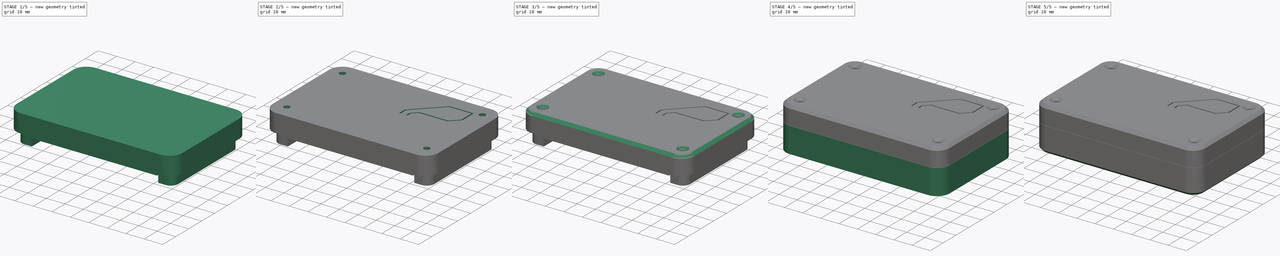
[diagram: build sequence overview — one tinted view per stage of 5, left to right]
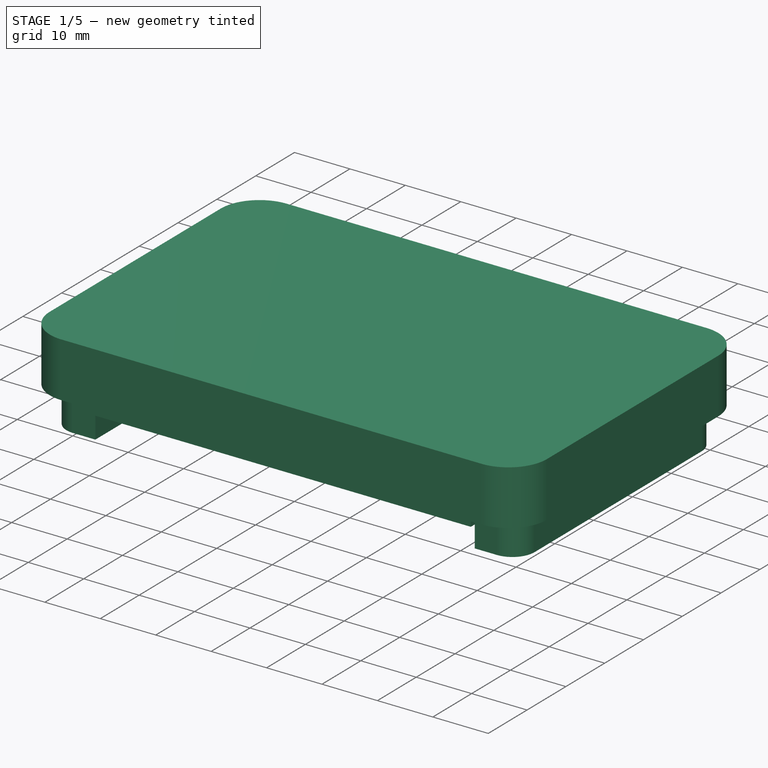
[diagram: stage 1 of 5 — iso view after this stage's code; geometry added in this stage tinted green]
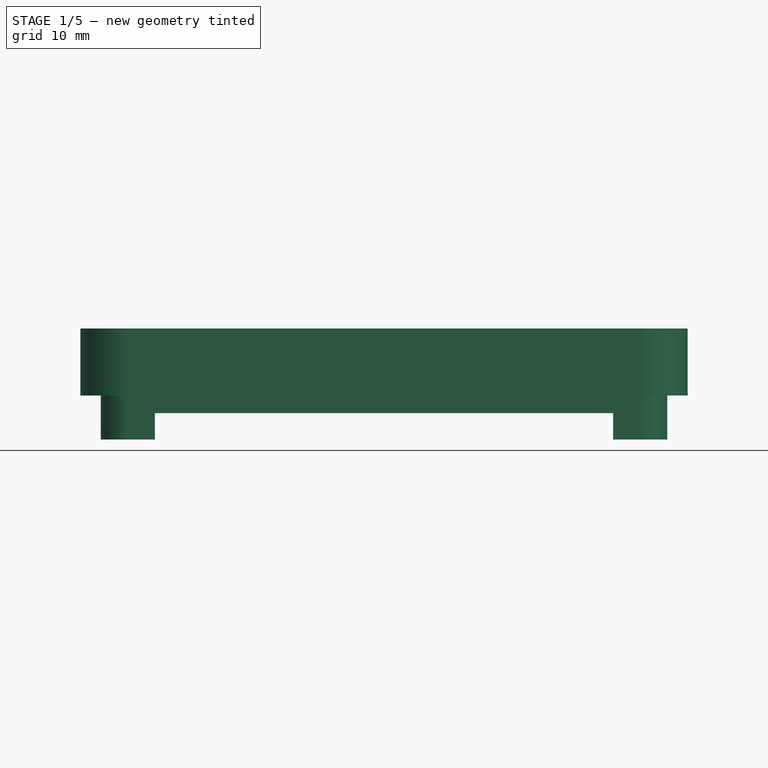
[diagram: stage 1 of 5 — front view after this stage's code; geometry added in this stage tinted green]
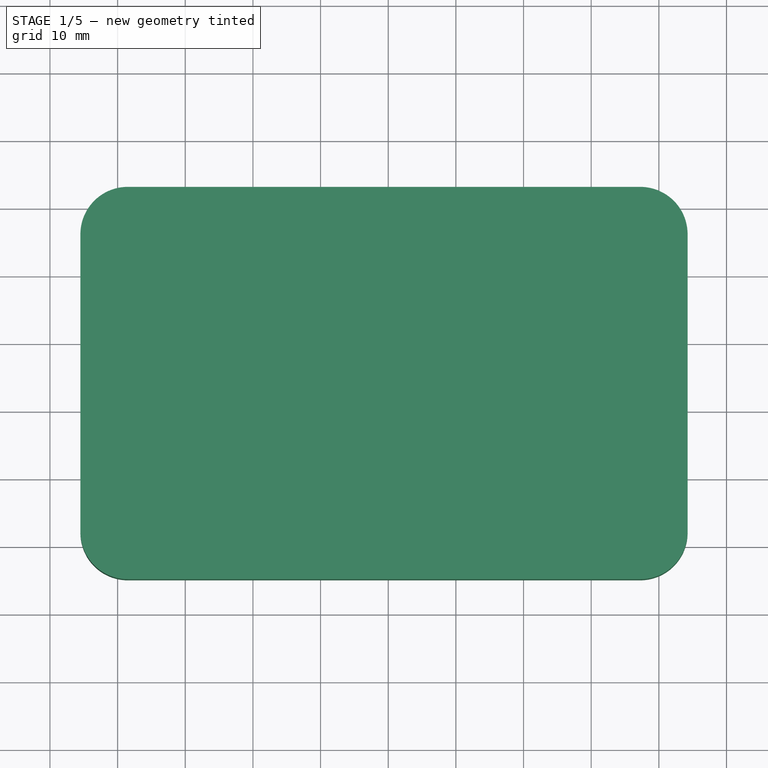
[diagram: stage 1 of 5 — top view after this stage's code; geometry added in this stage tinted green]
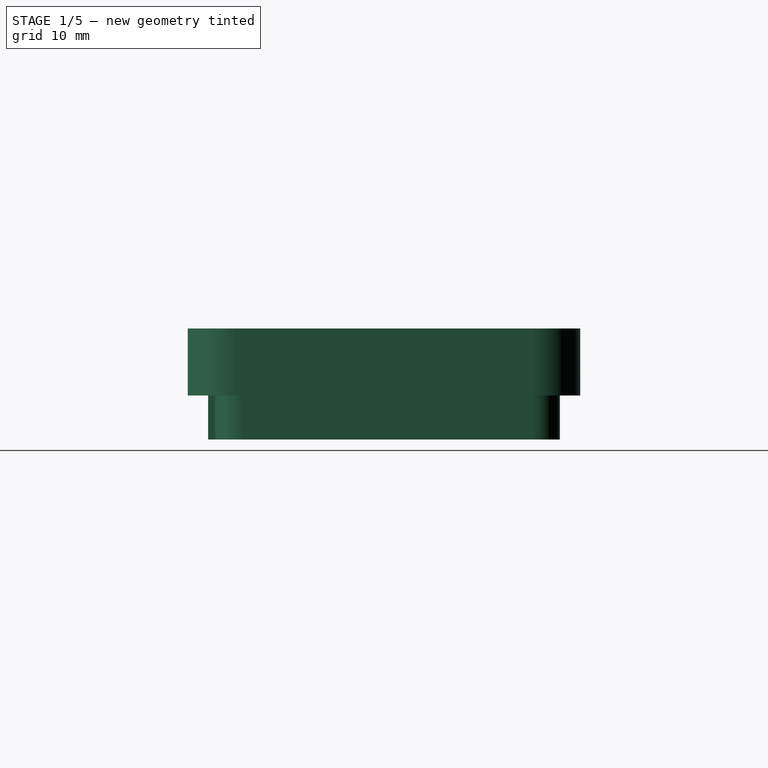
[diagram: stage 1 of 5 — right view after this stage's code; geometry added in this stage tinted green]
FCSTD DOCUMENT  (FreeCAD 0.20R29603 (Git))
Label: case
License: All rights reserved
LicenseURL: http://en.wikipedia.org/wiki/All_rights_reserved
objects: Part::Feature×82, App::Part×74, Sketcher::SketchObject×15, PartDesign::ShapeBinder×9, PartDesign::Pocket×8, PartDesign::Pad×6, PartDesign::Chamfer×5, PartDesign::Body×2, App::FeaturePython×1
note: 146 computed .brp shape members not serialized (recipe doc carries the construction recipe); baked Part::Feature solids carry a one-line shape summary decoded from their .brp

FEATURE [PartDesign::ShapeBinder] ShapeBinder005
  Support = -> [Part__Feature]
  TraceSupport = false
FEATURE [Sketcher::SketchObject] Sketch006
  AttachmentOffset = pos=(0,0,18) rot=(0,0,1;0rad)
  ExternalGeometry = -> [ShapeBinder005]
  FullyConstrained = true
  MapMode = 5
  Placement = pos=(0,0,18) rot=(0,0,1;0rad)
  Support = -> [XY_Plane075]
  sketch-geometry (10):
    g0: ArcOfCircle CenterX=-18.5 CenterY=96 CenterZ=0 NormalX=0 NormalY=0 NormalZ=1 AngleXU=0 Radius=7 StartAngle=1.5708 EndAngle=3.14159
    g1: LineSegment StartX=-18.5 StartY=103 StartZ=0 EndX=57.25 EndY=103 EndZ=0
    g2: ArcOfCircle CenterX=57.25 CenterY=96 CenterZ=0 NormalX=0 NormalY=0 NormalZ=1 AngleXU=0 Radius=7 StartAngle=2e-16 EndAngle=1.5708
    g3: LineSegment StartX=64.25 StartY=96 StartZ=0 EndX=64.25 EndY=52 EndZ=0
    g4: ArcOfCircle CenterX=57.25 CenterY=52 CenterZ=0 NormalX=0 NormalY=0 NormalZ=1 AngleXU=0 Radius=7 StartAngle=4.71239 EndAngle=6.28319
    g5: LineSegment StartX=57.25 StartY=45 StartZ=0 EndX=-18.5 EndY=45 EndZ=0
    g6: ArcOfCircle CenterX=-18.5 CenterY=52 CenterZ=0 NormalX=0 NormalY=0 NormalZ=1 AngleXU=0 Radius=7 StartAngle=3.14159 EndAngle=4.71239
    g7: LineSegment StartX=-25.5 StartY=52 StartZ=0 EndX=-25.5 EndY=96 EndZ=0
    g8: GeomPoint X=-25.5 Y=103 Z=0
    g9: GeomPoint X=64.25 Y=45 Z=0
  constraints (23):
    c: Tangent(g0,g1) = 1.5708
    c: Tangent(g1,g2) = 1.5708
    c: Tangent(g2,g3) = 1.5708
    c: Tangent(g3,g4) = 1.5708
    c: Tangent(g4,g5) = 1.5708
    c: Tangent(g5,g6) = 1.5708
    c: Tangent(g6,g7) = 1.5708
    c: Tangent(g7,g0) = 1.5708
    c: Horizontal(g1)
    c: Horizontal(g5)
    c: Vertical(g3)
    c: Vertical(g7)
    c: Equal(g0,g2)
    c: Equal(g2,g4)
    c: Equal(g4,g6)
    c: PointOnObject(g8,g1)
    c: PointOnObject(g8,g7)
    c: PointOnObject(g9,g3)
    c: PointOnObject(g9,g5)
    c: Coincident(g0,g-3)
    c: DistanceY(g-5,g0) = 3
    c: Vertical(g4,g-4)
    c: DistanceY(g4,g-4) = 1
FEATURE [PartDesign::Pad] Pad002
  Direction = (0,0,1)
  Length = 9.9
  Length2 = 10
  Profile = -> Sketch006
  ReferenceAxis = -> Sketch006 [N_Axis]
  Reversed = true
  Type = 0
FEATURE [Sketcher::SketchObject] Sketch007
  AttachmentOffset = pos=(0,0,15) rot=(0,0,1;0rad)
  ExternalGeometry = -> [ShapeBinder005]
  FullyConstrained = true
  MapMode = 5
  Placement = pos=(0,0,15) rot=(0,0,1;0rad)
  Support = -> [XY_Plane075]
  sketch-geometry (10):
    g0: ArcOfCircle CenterX=-18.5 CenterY=96 CenterZ=0 NormalX=0 NormalY=0 NormalZ=1 AngleXU=0 Radius=4 StartAngle=1.5708 EndAngle=3.14159
    g1: LineSegment StartX=-18.5 StartY=100 StartZ=0 EndX=57.25 EndY=100 EndZ=0
    g2: ArcOfCircle CenterX=57.25 CenterY=96 CenterZ=0 NormalX=0 NormalY=0 NormalZ=1 AngleXU=0 Radius=4 StartAngle=9e-16 EndAngle=1.5708
    g3: LineSegment StartX=61.25 StartY=96 StartZ=0 EndX=61.25 EndY=52 EndZ=0
    g4: ArcOfCircle CenterX=57.25 CenterY=52 CenterZ=0 NormalX=0 NormalY=0 NormalZ=1 AngleXU=0 Radius=4 StartAngle=4.71239 EndAngle=6.28319
    g5: LineSegment StartX=57.25 StartY=48 StartZ=0 EndX=-18.5 EndY=48 EndZ=0
    g6: ArcOfCircle CenterX=-18.5 CenterY=52 CenterZ=0 NormalX=0 NormalY=0 NormalZ=1 AngleXU=0 Radius=4 StartAngle=3.14159 EndAngle=4.71239
    g7: LineSegment StartX=-22.5 StartY=52 StartZ=0 EndX=-22.5 EndY=96 EndZ=0
    g8: GeomPoint X=-22.5 Y=100 Z=0
    g9: GeomPoint X=61.25 Y=48 Z=0
  constraints (23):
    c: Tangent(g0,g1) = 1.5708
    c: Tangent(g1,g2) = 1.5708
    c: Tangent(g2,g3) = 1.5708
    c: Tangent(g3,g4) = 1.5708
    c: Tangent(g4,g5) = 1.5708
    c: Tangent(g5,g6) = 1.5708
    c: Tangent(g6,g7) = 1.5708
    c: Tangent(g7,g0) = 1.5708
    c: Horizontal(g1)
    c: Horizontal(g5)
    c: Vertical(g3)
    c: Vertical(g7)
    c: Equal(g0,g2)
    c: Equal(g2,g4)
    c: Equal(g4,g6)
    c: PointOnObject(g8,g1)
    c: PointOnObject(g8,g7)
    c: PointOnObject(g9,g3)
    c: PointOnObject(g9,g5)
    c: Coincident(g-3,g0)
    c: DistanceY(g4,g-7) = 1
    c: Vertical(g4,g-5)
    c: DistanceY(g4,g-5) = 1
FEATURE [PartDesign::Pocket] Pocket004
  BaseFeature = -> Pad002
  Direction = (0,0,-1)
  Length = 10
  Length2 = 5
  Profile = -> Sketch007
  ReferenceAxis = -> Sketch007 [N_Axis]
  Type = 0
FEATURE [Sketcher::SketchObject] Sketch008
  AttachmentOffset = pos=(0,0,18) rot=(0,0,1;0rad)
  ExternalGeometry = -> [ShapeBinder005]
  FullyConstrained = true
  MapMode = 5
  Placement = pos=(0,0,18) rot=(0,0,1;0rad)
  Support = -> [XY_Plane075]
  sketch-geometry (14):
    g0: ArcOfCircle CenterX=-18.5 CenterY=52 CenterZ=0 NormalX=0 NormalY=0 NormalZ=1 AngleXU=0 Radius=4 StartAngle=3.14159 EndAngle=4.71239
    g1: LineSegment StartX=-22.5 StartY=52 StartZ=0 EndX=-22.5 EndY=96 EndZ=0
    g2: ArcOfCircle CenterX=-18.5 CenterY=96 CenterZ=0 NormalX=0 NormalY=0 NormalZ=1 AngleXU=0 Radius=4 StartAngle=1.5708 EndAngle=3.14159
    g3: LineSegment StartX=-18.5 StartY=100 StartZ=0 EndX=-14.5 EndY=100 EndZ=0
    g4: LineSegment StartX=-14.5 StartY=100 StartZ=0 EndX=-14.5 EndY=48 EndZ=0
    g5: LineSegment StartX=-14.5 StartY=48 StartZ=0 EndX=-18.5 EndY=48 EndZ=0
    g6: GeomPoint X=-22.5 Y=48 Z=0
    g7: ArcOfCircle CenterX=57.25 CenterY=96 CenterZ=0 NormalX=0 NormalY=0 NormalZ=1 AngleXU=0 Radius=4 StartAngle=-1.8e-15 EndAngle=1.5708
    g8: LineSegment StartX=61.25 StartY=96 StartZ=0 EndX=61.25 EndY=53 EndZ=0
    g9: ArcOfCircle CenterX=57.25 CenterY=53 CenterZ=0 NormalX=0 NormalY=0 NormalZ=1 AngleXU=0 Radius=4 StartAngle=4.71239 EndAngle=6.28319
    g10: LineSegment StartX=57.25 StartY=49 StartZ=0 EndX=53.25 EndY=49 EndZ=0
    g11: LineSegment StartX=53.25 StartY=49 StartZ=0 EndX=53.25 EndY=100 EndZ=0
    g12: LineSegment StartX=53.25 StartY=100 StartZ=0 EndX=57.25 EndY=100 EndZ=0
    g13: GeomPoint X=61.25 Y=100 Z=0
  constraints (33):
    c: Tangent(g0,g1) = 1.5708
    c: Tangent(g1,g2) = 1.5708
    c: Tangent(g2,g3) = 1.5708
    c: Tangent(g5,g0) = 1.5708
    c: Horizontal(g3)
    c: Horizontal(g5)
    c: Vertical(g1)
    c: Vertical(g4)
    c: PointOnObject(g6,g1)
    c: PointOnObject(g6,g5)
    c: Coincident(g5,g4)
    c: Coincident(g4,g3)
    c: Coincident(g2,g-3)
    c: DistanceX(g1,g2) = 4
    c: DistanceX(g2,g3) = 4
    c: Tangent(g7,g8) = 1.5708
    c: Tangent(g8,g9) = 1.5708
    c: Tangent(g9,g10) = 1.5708
    c: Tangent(g12,g7) = 1.5708
    c: Horizontal(g10)
    c: Horizontal(g12)
    c: Vertical(g8)
    c: Vertical(g11)
    c: PointOnObject(g13,g8)
    c: PointOnObject(g13,g12)
    c: Coincident(g11,g10)
    c: Coincident(g12,g11)
    c: Coincident(g-4,g7)
    c: Coincident(g9,g-5)
    c: DistanceX(g9,g8) = 4
    c: DistanceX(g10,g9) = 4
    c: Vertical(g-6,g0)
    c: DistanceY(g0,g-6) = 1
FEATURE [PartDesign::Pad] Pad003
  BaseFeature = -> Pocket004
  Direction = (0,0,1)
  Length = 16.4
  Length2 = 10
  Profile = -> Sketch008
  ReferenceAxis = -> Sketch008 [N_Axis]
  Reversed = true
  Type = 0
FEATURE [App::FeaturePython] Dimension  # Draft dimension (typed FeaturePython)
  Diameter = false
  Dimline = (71.8882,105.626,8)
  Direction = (0,0,0)
  Distance = 1.1
  End = (38.4,101.6,8)
  Normal = (0,0,1)
  Start = (38.4,100.5,8)
FEATURE [PartDesign::ShapeBinder] ShapeBinder006
  Placement = pos=(-1.29,89.055,1.65) rot=(0,0,1;3.14159rad)
  Support = -> [Part__Feature042]
  TraceSupport = true
FEATURE [Sketcher::SketchObject] Sketch009
  AttachmentOffset = pos=(0,0,108) rot=(0,0,1;0rad)
  ExternalGeometry = -> [ShapeBinder006]
  FullyConstrained = true
  MapMode = 5
  Placement = pos=(0,108,2.4e-14) rot=(0,0.707107,0.707107;3.14159rad)
  Support = -> [XZ_Plane075]
  sketch-geometry (10):
    g0: ArcOfCircle CenterX=-18.65 CenterY=13.15 CenterZ=0 NormalX=0 NormalY=0 NormalZ=1 AngleXU=0 Radius=0.9 StartAngle=1.5708 EndAngle=3.14159
    g1: LineSegment StartX=-18.65 StartY=14.05 StartZ=0 EndX=10.15 EndY=14.05 EndZ=0
    g2: ArcOfCircle CenterX=10.15 CenterY=13.15 CenterZ=0 NormalX=0 NormalY=0 NormalZ=1 AngleXU=0 Radius=0.9 StartAngle=3.31e-14 EndAngle=1.5708
    g3: LineSegment StartX=11.05 StartY=13.15 StartZ=0 EndX=11.05 EndY=2.65 EndZ=0
    g4: ArcOfCircle CenterX=10.15 CenterY=2.65 CenterZ=0 NormalX=0 NormalY=0 NormalZ=1 AngleXU=0 Radius=0.9 StartAngle=4.71239 EndAngle=6.28319
    g5: LineSegment StartX=10.15 StartY=1.75 StartZ=0 EndX=-18.65 EndY=1.75 EndZ=0
    g6: ArcOfCircle CenterX=-18.65 CenterY=2.65 CenterZ=0 NormalX=0 NormalY=0 NormalZ=1 AngleXU=0 Radius=0.9 StartAngle=3.14159 EndAngle=4.71239
    g7: LineSegment StartX=-19.55 StartY=2.65 StartZ=0 EndX=-19.55 EndY=13.15 EndZ=0
    g8: GeomPoint X=-19.55 Y=14.05 Z=0
    g9: GeomPoint X=11.05 Y=1.75 Z=0
  constraints (22):
    c: Tangent(g0,g1) = 1.5708
    c: Tangent(g1,g2) = 1.5708
    c: Tangent(g2,g3) = 1.5708
    c: Tangent(g3,g4) = 1.5708
    c: Tangent(g4,g5) = 1.5708
    c: Tangent(g5,g6) = 1.5708
    c: Tangent(g6,g7) = 1.5708
    c: Tangent(g7,g0) = 1.5708
    c: Horizontal(g1)
    c: Horizontal(g5)
    c: Vertical(g3)
    c: Vertical(g7)
    c: Equal(g0,g2)
    c: Equal(g2,g4)
    c: Equal(g4,g6)
    c: PointOnObject(g8,g1)
    c: PointOnObject(g8,g7)
    c: PointOnObject(g9,g3)
    c: PointOnObject(g9,g5)
    c: Coincident(g4,g-4)
    c: Coincident(g0,g-3)
    c: Vertical(g-4,g3)
FEATURE [PartDesign::ShapeBinder] ShapeBinder007
  Support = -> [Sketch004]
  TraceSupport = true
FEATURE [Sketcher::SketchObject] Sketch010
  AttachmentOffset = pos=(0,0,21) rot=(0,0,1;0rad)
  ExternalGeometry = -> [ShapeBinder007]
  FullyConstrained = true
  MapMode = 5
  Placement = pos=(0,0,21) rot=(0,0,1;0rad)
  Support = -> [XY_Plane075]
  sketch-geometry (4):
    g0: Circle CenterX=-18.5 CenterY=96 CenterZ=0 NormalX=0 NormalY=0 NormalZ=1 AngleXU=0 Radius=1.6
    g1: Circle CenterX=-18.5 CenterY=53 CenterZ=0 NormalX=0 NormalY=0 NormalZ=1 AngleXU=0 Radius=1.6
    g2: Circle CenterX=57.25 CenterY=53 CenterZ=0 NormalX=0 NormalY=0 NormalZ=1 AngleXU=0 Radius=1.6
    g3: Circle CenterX=57.25 CenterY=96 CenterZ=0 NormalX=0 NormalY=0 NormalZ=1 AngleXU=0 Radius=1.6
  constraints (10):
    c: Coincident(g2,g-4)
    c: Equal(g1,g-3)
    c: Equal(g-3,g3)
    c: Equal(g3,g2)
    c: Coincident(g0,g-3)
    c: Vertical(g0,g1)
    c: Vertical(g3,g2)
    c: Equal(g0,g1)
    c: Horizontal(g0,g3)
    c: Horizontal(g1,g2)
FEATURE [Sketcher::SketchObject] Sketch011
  AttachmentOffset = pos=(0,0,18) rot=(0,0,1;0rad)
  ExternalGeometry = -> [Sketch008,Sketch007]
  FullyConstrained = true
  MapMode = 5
  Placement = pos=(0,0,18) rot=(0,0,1;0rad)
  Support = -> [XY_Plane075]
  sketch-geometry (8):
    g0: LineSegment StartX=-14.5 StartY=100 StartZ=0 EndX=53.25 EndY=100 EndZ=0
    g1: LineSegment StartX=53.25 StartY=100 StartZ=0 EndX=53.25 EndY=97 EndZ=0
    g2: LineSegment StartX=53.25 StartY=97 StartZ=0 EndX=-14.5 EndY=97 EndZ=0
    g3: LineSegment StartX=-14.5 StartY=97 StartZ=0 EndX=-14.5 EndY=100 EndZ=0
    g4: LineSegment StartX=53.25 StartY=48 StartZ=0 EndX=-14.5 EndY=48 EndZ=0
    g5: LineSegment StartX=-14.5 StartY=48 StartZ=0 EndX=-14.5 EndY=51 EndZ=0
    g6: LineSegment StartX=-14.5 StartY=51 StartZ=0 EndX=53.25 EndY=51 EndZ=0
    g7: LineSegment StartX=53.25 StartY=51 StartZ=0 EndX=53.25 EndY=48 EndZ=0
  constraints (23):
    c: Coincident(g1,g2)
    c: Coincident(g2,g3)
    c: Coincident(g3,g0)
    c: Horizontal(g0)
    c: Horizontal(g2)
    c: Vertical(g1)
    c: Vertical(g3)
    c: Coincident(g0,g-3)
    c: Vertical(g0,g-4)
    c: Coincident(g4,g5)
    c: Coincident(g5,g6)
    c: Coincident(g6,g7)
    c: Coincident(g7,g4)
    c: Horizontal(g4)
    c: Horizontal(g6)
    c: Vertical(g5)
    c: Vertical(g7)
    c: Equal(g5,g3)
    c: Horizontal(g-5,g4)
    c: Vertical(g6,g1)
    c: Vertical(g5,g2)
    c: DistanceY(g5,g5) = 3
    c: Coincident(g0,g1)
FEATURE [PartDesign::Pad] Pad004
  BaseFeature = -> Pad003
  Direction = (0,0,1)
  Length = 12.5
  Length2 = 10
  Profile = -> Sketch011
  ReferenceAxis = -> Sketch011 [N_Axis]
  Reversed = true
  Type = 0
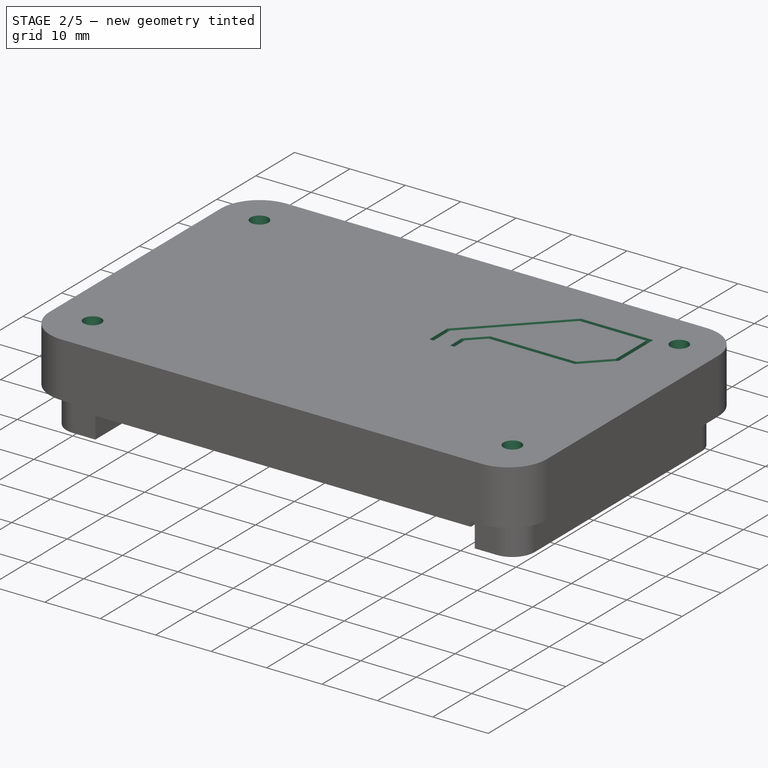
[diagram: stage 2 of 5 — iso view after this stage's code; geometry added in this stage tinted green]
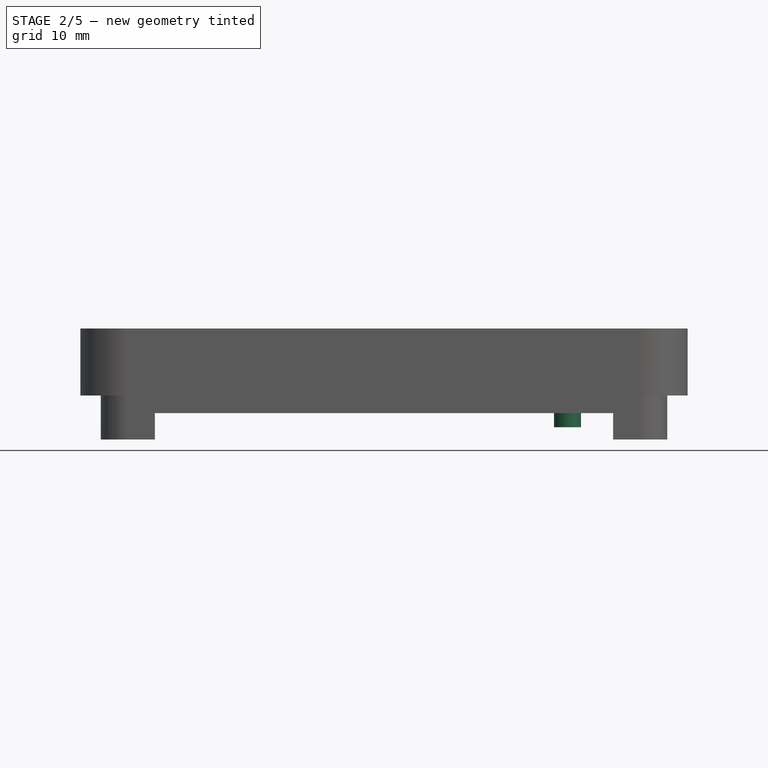
[diagram: stage 2 of 5 — front view after this stage's code; geometry added in this stage tinted green]
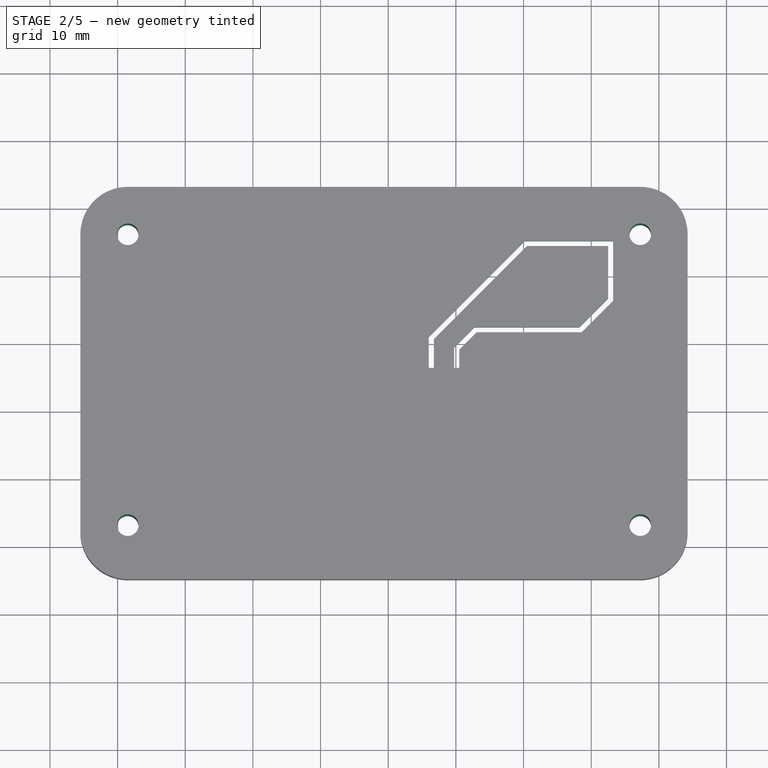
[diagram: stage 2 of 5 — top view after this stage's code; geometry added in this stage tinted green]
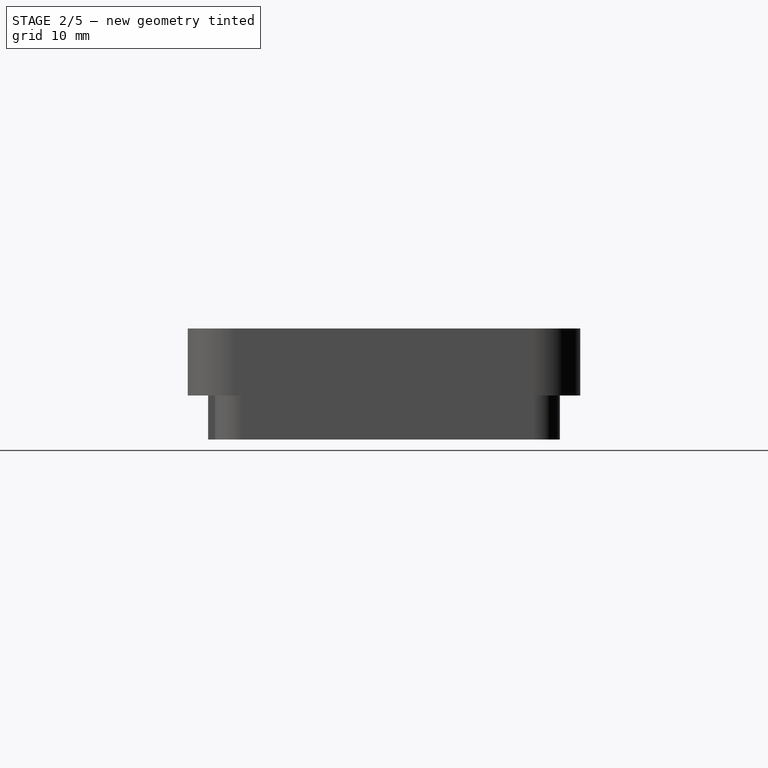
[diagram: stage 2 of 5 — right view after this stage's code; geometry added in this stage tinted green]
FEATURE [PartDesign::Pocket] Pocket005
  BaseFeature = -> Pad004
  Direction = (0,-1,-2e-16)
  Length = 13
  Length2 = 5
  Profile = -> Sketch009
  ReferenceAxis = -> Sketch009 [N_Axis]
  Type = 0
FEATURE [PartDesign::Pocket] Pocket006
  BaseFeature = -> Pocket005
  Direction = (0,0,-1)
  Length = 5
  Length2 = 5
  Profile = -> Sketch010
  ReferenceAxis = -> Sketch010 [N_Axis]
  Type = 1
FEATURE [PartDesign::ShapeBinder] ShapeBinder008
  Placement = pos=(46.5,88.25,1.65) rot=(0,0,1;2.35619rad)
  Support = -> [Part__Feature077]
  TraceSupport = true
FEATURE [Sketcher::SketchObject] Sketch012
  AttachmentOffset = pos=(0,0,18) rot=(0,0,1;0rad)
  ExternalGeometry = -> [ShapeBinder008]
  FullyConstrained = true
  MapMode = 5
  Placement = pos=(0,0,18) rot=(0,0,1;0rad)
  Support = -> [XY_Plane075]
  sketch-geometry (1):
    g0: Circle CenterX=46.5 CenterY=88.25 CenterZ=0 NormalX=0 NormalY=0 NormalZ=1 AngleXU=0 Radius=2
  constraints (2):
    c: Coincident(g0,g-3)
    c: Diameter(g0) = 4
FEATURE [PartDesign::Pad] Pad005
  BaseFeature = -> Pocket006
  Direction = (0,0,1)
  Length = 14.6
  Length2 = 10
  Profile = -> Sketch012
  ReferenceAxis = -> Sketch012 [N_Axis]
  Reversed = true
  Type = 0
FEATURE [Sketcher::SketchObject] Sketch013
  AttachmentOffset = pos=(0,0,18) rot=(0,0,1;0rad)
  ExternalGeometry = -> [ShapeBinder008]
  FullyConstrained = true
  MapMode = 5
  Placement = pos=(0,0,18) rot=(0,0,1;0rad)
  Support = -> [XY_Plane075]
  sketch-geometry (43):
    g0: LineSegment StartX=40.5 StartY=94.25 StartZ=0 EndX=52.5 EndY=94.25 EndZ=0
    g1: LineSegment StartX=52.5 StartY=94.25 StartZ=0 EndX=52.5 EndY=82.25 EndZ=0
    g2: LineSegment StartX=52.5 StartY=82.25 StartZ=0 EndX=40.5 EndY=82.25 EndZ=0
    g3: LineSegment StartX=40.5 StartY=82.25 StartZ=0 EndX=40.5 EndY=94.25 EndZ=0
    g4: LineSegment StartX=40.5 StartY=94.25 StartZ=0 EndX=26.7426 EndY=80.4926 EndZ=0
    g5: LineSegment StartX=26.7426 StartY=80.4926 StartZ=0 EndX=26.7426 EndY=76.25 EndZ=0
    g6: LineSegment StartX=26.7426 StartY=76.25 StartZ=0 EndX=29.7426 EndY=76.25 EndZ=0
    g7: LineSegment StartX=29.7426 StartY=76.25 StartZ=0 EndX=29.7426 EndY=79.25 EndZ=0
    g8: LineSegment StartX=29.7426 StartY=79.25 StartZ=0 EndX=32.7426 EndY=82.25 EndZ=0
    g9: LineSegment StartX=32.7426 StartY=82.25 StartZ=0 EndX=40.5 EndY=82.25 EndZ=0
    g10: LineSegment StartX=29.7426 StartY=79.25 StartZ=0 EndX=27.6213 EndY=81.3713 EndZ=0
    g11: LineSegment StartX=48.2574 StartY=82.25 StartZ=0 EndX=52.5 EndY=86.4926 EndZ=0
    g12: LineSegment StartX=26.7426 StartY=76.25 StartZ=0 EndX=26.7426 EndY=80.4926 EndZ=0
    g13: LineSegment StartX=26.7426 StartY=76.25 StartZ=0 EndX=26.7426 EndY=80.4926 EndZ=0
    g14: LineSegment StartX=26.7426 StartY=80.4926 StartZ=0 EndX=40.5 EndY=94.25 EndZ=0
    g15: LineSegment StartX=40.5 StartY=94.25 StartZ=0 EndX=52.5 EndY=94.25 EndZ=0
    g16: LineSegment StartX=52.5 StartY=94.25 StartZ=0 EndX=52.5 EndY=86.4926 EndZ=0
    g17: LineSegment StartX=48.2574 StartY=82.25 StartZ=0 EndX=32.7426 EndY=82.25 EndZ=0
    g18: LineSegment StartX=32.7426 StartY=82.25 StartZ=0 EndX=29.7426 EndY=79.25 EndZ=0
    g19: LineSegment StartX=29.7426 StartY=79.25 StartZ=0 EndX=29.7426 EndY=76.25 EndZ=0
    g20: LineSegment StartX=29.7426 StartY=76.25 StartZ=0 EndX=30.4926 EndY=76.25 EndZ=0
    g21: LineSegment StartX=30.4926 StartY=76.25 StartZ=0 EndX=30.4926 EndY=78.9393 EndZ=0
    g22: LineSegment StartX=30.4926 StartY=78.9393 StartZ=0 EndX=33.0533 EndY=81.5 EndZ=0
    g23: LineSegment StartX=33.0533 StartY=81.5 StartZ=0 EndX=48.568 EndY=81.5 EndZ=0
    g24: LineSegment StartX=53.25 StartY=95 StartZ=0 EndX=40.1893 EndY=95 EndZ=0
    g25: LineSegment StartX=40.1893 StartY=95 StartZ=0 EndX=25.9926 EndY=80.8033 EndZ=0
    g26: LineSegment StartX=25.9926 StartY=80.8033 StartZ=0 EndX=25.9926 EndY=76.25 EndZ=0
    g27: LineSegment StartX=25.9926 StartY=76.25 StartZ=0 EndX=26.7426 EndY=76.25 EndZ=0
    g28: LineSegment StartX=48.568 StartY=81.5 StartZ=0 EndX=53.25 EndY=86.182 EndZ=0
    g29: LineSegment StartX=53.25 StartY=86.182 StartZ=0 EndX=53.25 EndY=95 EndZ=0
    g30: LineSegment StartX=52.5 StartY=94.25 StartZ=0 EndX=52.5 EndY=95 EndZ=0
    g31: LineSegment StartX=40.5 StartY=82.25 StartZ=0 EndX=40.5 EndY=81.5 EndZ=0
    g32: LineSegment StartX=52.5 StartY=94.25 StartZ=0 EndX=53.25 EndY=94.25 EndZ=0
    g33: LineSegment StartX=40.5 StartY=94.25 StartZ=0 EndX=39.9697 EndY=94.7803 EndZ=0
    g34: LineSegment StartX=52.5 StartY=86.4926 StartZ=0 EndX=53.0303 EndY=85.9623 EndZ=0
    g35: LineSegment StartX=33.0533 StartY=81.5 StartZ=0 EndX=32.523 EndY=82.0303 EndZ=0
    g36: LineSegment StartX=48.2574 StartY=82.25 StartZ=0 EndX=52.5 EndY=86.4926 EndZ=0
    g37: LineSegment StartX=40.5 StartY=82.25 StartZ=0 EndX=48.2574 EndY=82.25 EndZ=0
    g38: LineSegment StartX=40.5 StartY=82.25 StartZ=0 EndX=48.2574 EndY=82.25 EndZ=0
    g39: LineSegment StartX=52.5 StartY=86.4926 StartZ=0 EndX=52.5 EndY=94.25 EndZ=0
    g40: LineSegment StartX=40.5 StartY=82.25 StartZ=0 EndX=48.2574 EndY=82.25 EndZ=0
    g41: LineSegment StartX=48.2574 StartY=82.25 StartZ=0 EndX=52.5 EndY=86.4926 EndZ=0
    g42: LineSegment StartX=52.5 StartY=86.4926 StartZ=0 EndX=52.5 EndY=94.25 EndZ=0
  constraints (112):
    c: Coincident(g0,g1)
    c: Coincident(g1,g2)
    c: Coincident(g2,g3)
    c: Coincident(g3,g0)
    c: Horizontal(g0)
    c: Horizontal(g2)
    c: Vertical(g1)
    c: Vertical(g3)
    c: Symmetric(g1,g0,g-3)
    c: Equal(g3,g2)
    c: DistanceX(g0,g0) = 12
    c: Coincident(g0,g4)
    c: Coincident(g4,g5)
    c: Vertical(g5)
    c: Coincident(g5,g6)
    c: Coincident(g6,g7)
    c: Vertical(g7)
    c: Coincident(g7,g8)
    c: Coincident(g8,g9)
    c: Coincident(g9,g2)
    c: Angle(g4) = -2.35619
    c: Horizontal(g9)
    c: Horizontal(g6)
    c: Parallel(g8,g4)
    c: Coincident(g10,g7)
    c: PointOnObject(g10,g4)
    c: Perpendicular(g10,g4)
    c: Equal(g6,g10)
    c: DistanceX(g6,g6) = 3
    c: DistanceY(g7,g7) = 3
    c: DistanceY(g7,g8) = 3
    c: PointOnObject(g11,g2)
    c: PointOnObject(g11,g1)
    c: Parallel(g11,g4)
    c: Distance(g1,g11) = 3
    c: Coincident(g5,g12)
    c: Coincident(g13,g14)
    c: Coincident(g14,g15)
    c: Coincident(g15,g16)
    c: Coincident(g17,g18)
    c: Coincident(g18,g19)
    c: Coincident(g19,g20)
    c: Coincident(g20,g21)
    c: Coincident(g21,g22)
    c: Coincident(g22,g23)
    c: Coincident(g24,g25)
    c: Coincident(g25,g26)
    c: Coincident(g26,g27)
    c: Coincident(g27,g13)
    c: Coincident(g13,g12)
    c: Coincident(g13,g12)
    c: Coincident(g12,g4)
    c: Coincident(g0,g14)
    c: Coincident(g0,g15)
    c: Coincident(g17,g8)
    c: Coincident(g18,g7)
    c: Coincident(g19,g6)
    c: Horizontal(g20)
    c: Horizontal(g27)
    c: Parallel(g15,g24)
    c: Parallel(g23,g17)
    c: Parallel(g22,g18)
    c: Parallel(g21,g19)
    c: Parallel(g26,g12)
    c: Parallel(g14,g25)
    c: Coincident(g23,g28)
    c: Coincident(g28,g29)
    c: Coincident(g29,g24)
    c: Coincident(g30,g15)
    c: PointOnObject(g30,g24)
    c: Vertical(g30)
    c: Coincident(g31,g2)
    c: Vertical(g31)
    c: Coincident(g32,g15)
    c: PointOnObject(g32,g29)
    c: Horizontal(g32)
    c: PointOnObject(g31,g23)
    c: Vertical(g29)
    c: Parallel(g28,g11)
    c: Coincident(g33,g14)
    c: PointOnObject(g33,g25)
    c: PointOnObject(g34,g28)
    c: DistanceX(g32,g32) = 0.75
    c: Equal(g30,g32)
    c: Perpendicular(g34,g28)
    c: Coincident(g34,g11)
    c: Equal(g34,g32)
    c: Equal(g31,g32)
    c: Coincident(g35,g22)
    c: PointOnObject(g35,g18)
    c: Perpendicular(g18,g35)
    c: Equal(g32,g35)
    c: Perpendicular(g33,g25)
    c: Equal(g33,g32)
    c: Equal(g27,g32)
    c: Equal(g20,g27)
    c: Coincident(g11,g17)
    c: Coincident(g16,g11)
    c: Coincident(g36,g17)
    c: Coincident(g36,g16)
    c: Coincident(g37,g9)
    c: Coincident(g38,g9)
    c: Coincident(g39,g11)
    c: Coincident(g39,g0)
    c: Coincident(g38,g11)
    c: Coincident(g11,g37)
    c: Coincident(g9,g40)
    c: Coincident(g40,g41)
    c: Coincident(g41,g42)
    c: Coincident(g42,g0)
    c: Coincident(g40,g11)
    c: Coincident(g41,g11)
FEATURE [PartDesign::Pocket] Pocket007
  BaseFeature = -> Pad005
  Direction = (0,0,-1)
  Length = 3
  Length2 = 5
  Profile = -> Sketch013
  ReferenceAxis = -> Sketch013 [N_Axis]
  Type = 0
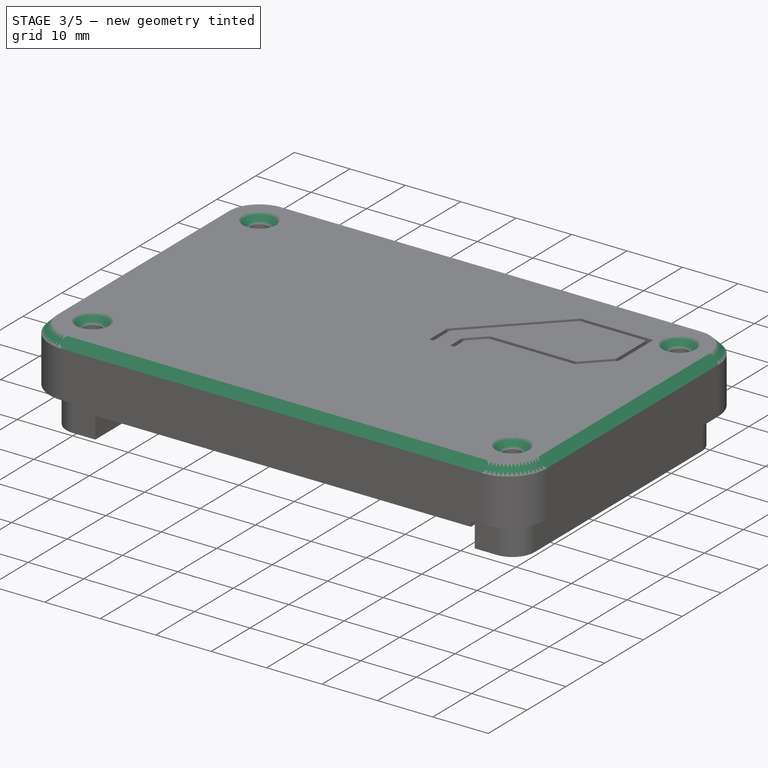
[diagram: stage 3 of 5 — iso view after this stage's code; geometry added in this stage tinted green]
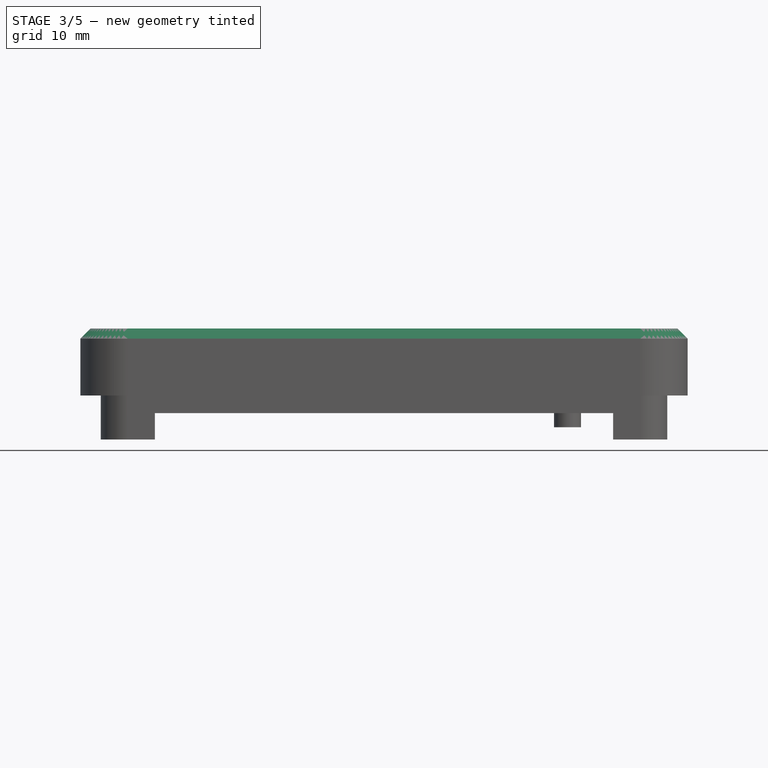
[diagram: stage 3 of 5 — front view after this stage's code; geometry added in this stage tinted green]
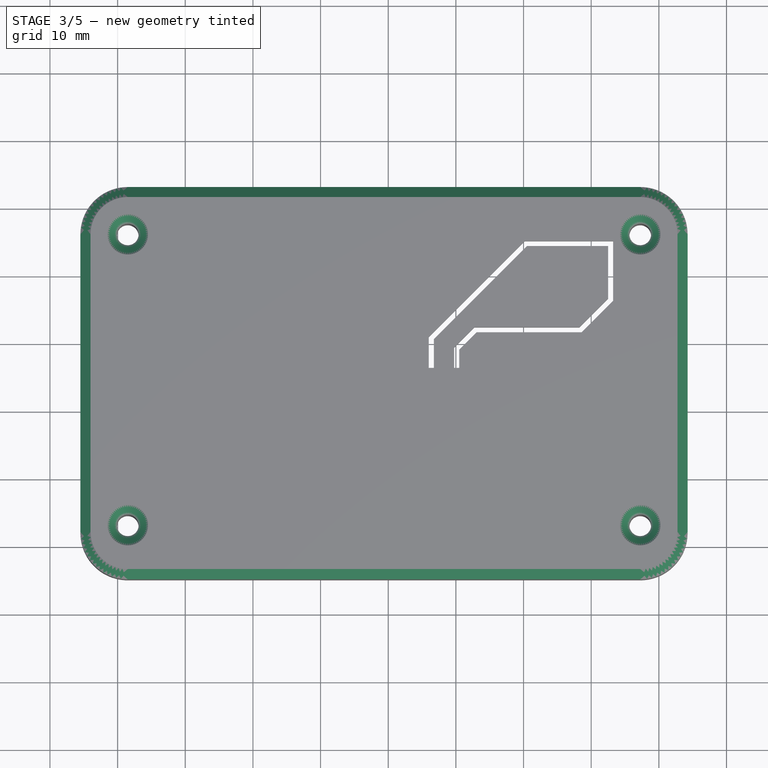
[diagram: stage 3 of 5 — top view after this stage's code; geometry added in this stage tinted green]
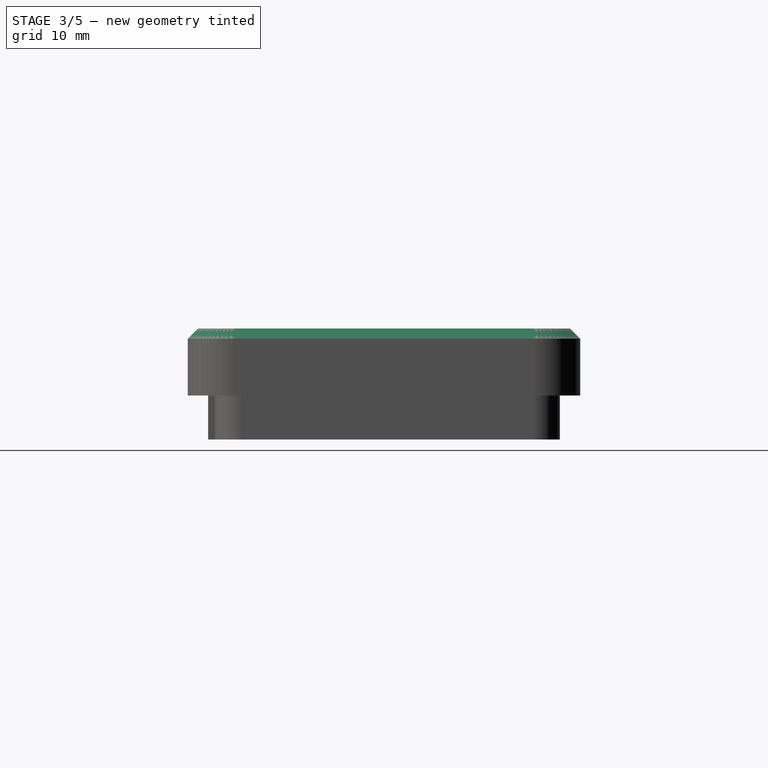
[diagram: stage 3 of 5 — right view after this stage's code; geometry added in this stage tinted green]
FEATURE [Sketcher::SketchObject] Sketch014
  AttachmentOffset = pos=(0,0,18) rot=(0,0,1;0rad)
  FullyConstrained = true
  MapMode = 5
  Placement = pos=(0,0,18) rot=(0,0,1;0rad)
  Support = -> [XY_Plane075]
FEATURE [PartDesign::Chamfer] Chamfer
  Angle = 45
  Base = -> Pocket007 [Edge19]
  BaseFeature = -> Pocket007
  ChamferType = 0
  FlipDirection = false
  Size = 1.5
  Size2 = 1
  SupportTransform = false
  UseAllEdges = false
FEATURE [PartDesign::Chamfer] Chamfer002
  Angle = 45
  Base = -> Chamfer [Edge140,Edge139,Edge131,Edge132]
  BaseFeature = -> Chamfer
  ChamferType = 0
  FlipDirection = false
  Size = 1.4
  Size2 = 1
  SupportTransform = false
  UseAllEdges = false
FEATURE [PartDesign::Body] Body  label="bottom"
  Group = -> [ShapeBinder,Sketch,Pad,Sketch001,Pocket,Sketch002,ShapeBinder001,ShapeBinder002,ShapeBinder003,ShapeBinder004,Pocket001,Sketch003,Pad001,Sketch004,Pocket002,Sketch005,Pocket003,Chamfer001,Chamfer003]
  Origin = -> Origin074
  Tip = -> Chamfer003
FEATURE [PartDesign::Chamfer] Chamfer004
  Angle = 45
  Base = -> Chamfer002 [Edge131]
  BaseFeature = -> Chamfer002
  ChamferType = 0
  FlipDirection = false
  Size = 0.25
  Size2 = 1
  SupportTransform = false
  UseAllEdges = false
FEATURE [PartDesign::Body] Body001  label="top"
  Group = -> [ShapeBinder005,Sketch006,Pad002,Sketch007,Pocket004,Sketch008,Pad003,Pad004,Sketch011,Sketch009,Pocket005,ShapeBinder007,Sketch010,Pocket006,ShapeBinder008,Sketch012,Pad005,Sketch013,Pocket007,Sketch014,Chamfer,Chamfer002,Chamfer004]
  Origin = -> Origin075
  Tip = -> Chamfer004
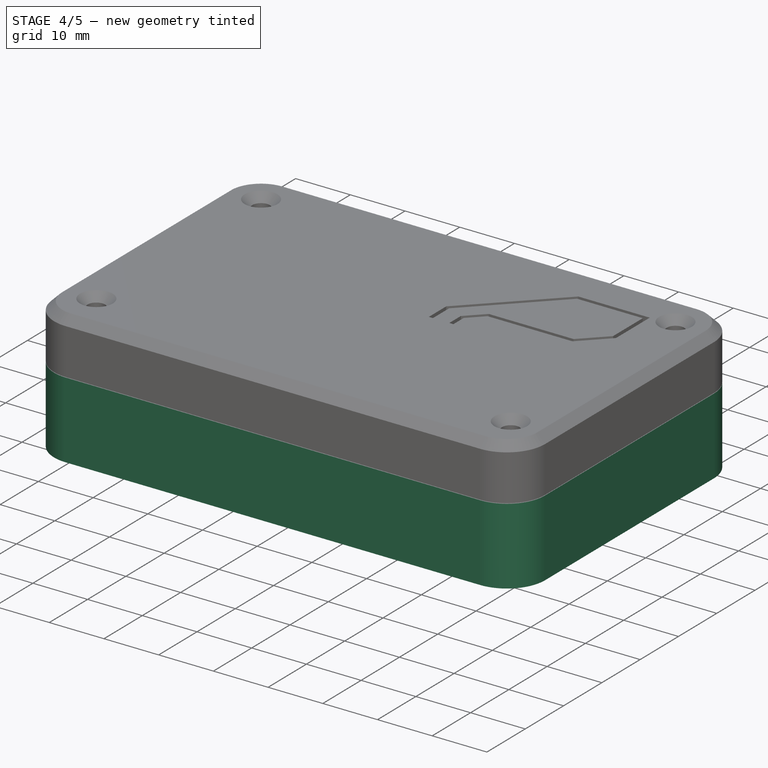
[diagram: stage 4 of 5 — iso view after this stage's code; geometry added in this stage tinted green]
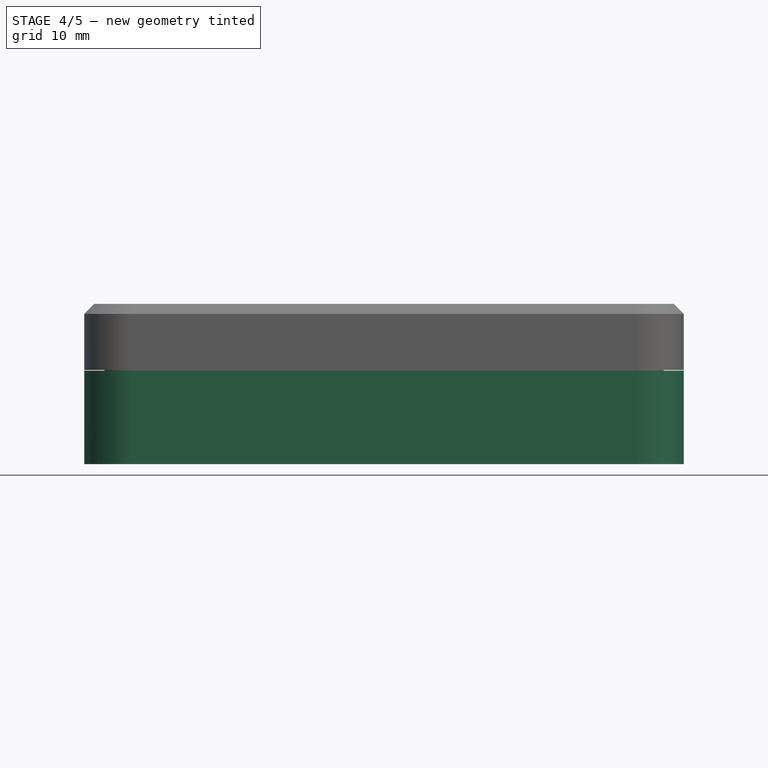
[diagram: stage 4 of 5 — front view after this stage's code; geometry added in this stage tinted green]
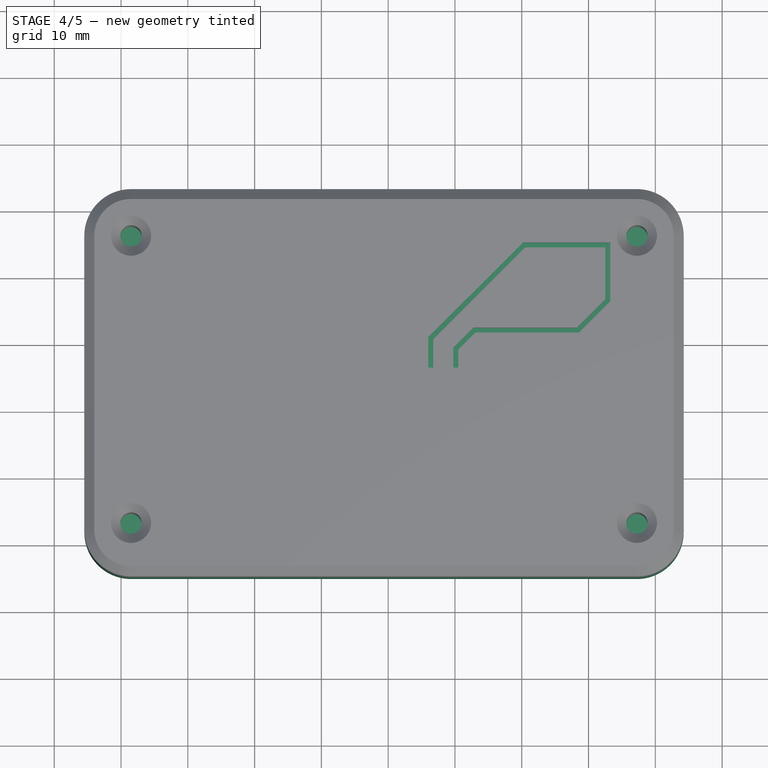
[diagram: stage 4 of 5 — top view after this stage's code; geometry added in this stage tinted green]
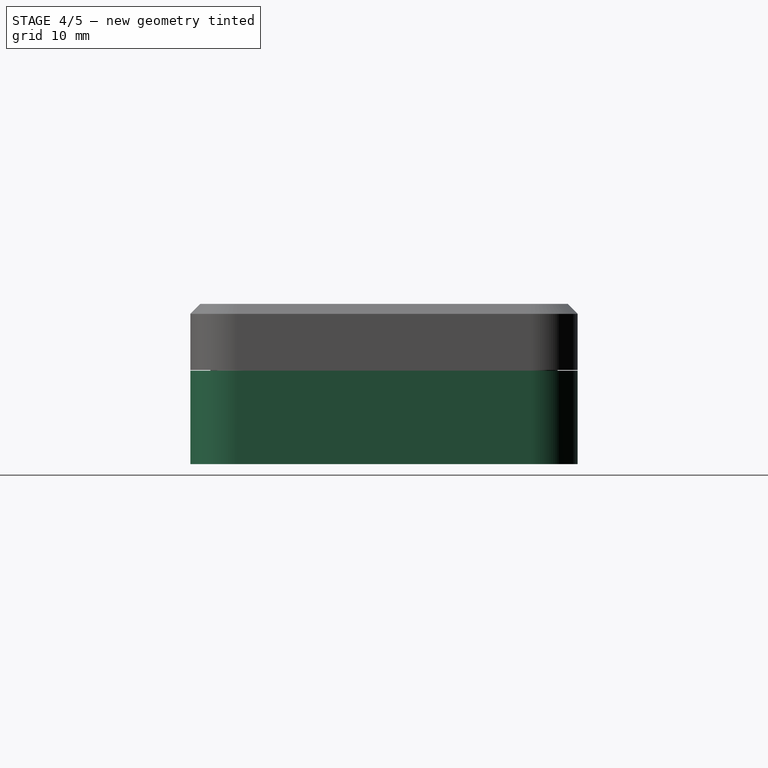
[diagram: stage 4 of 5 — right view after this stage's code; geometry added in this stage tinted green]
FEATURE [Part::Feature] Part__Feature  label="PCB"
  shape: bbox 83.75 x 51 x 1.6 mm, 251 faces (baked)
FEATURE [Part::Feature] Part__Feature001  label="C1-1"
  shape: bbox 1.6 x 0.8 x 0.8 mm, 28 faces (baked)
FEATURE [App::Part] C1
  Group = -> [Part__Feature001]
  Origin = -> Origin
  Placement = pos=(23.5,88.5,1.65) rot=(0,0,1;0rad)
FEATURE [Part::Feature] Part__Feature002  label="C2-1"
  shape: bbox 1.6 x 0.8 x 0.8 mm, 28 faces (baked)
FEATURE [App::Part] C2
  Group = -> [Part__Feature002]
  Origin = -> Origin001
  Placement = pos=(12,73,1.65) rot=(0,0,-1;1.5708rad)
FEATURE [Part::Feature] Part__Feature003  label="C3-1"
  shape: bbox 2 x 1.25 x 1.25 mm, 28 faces (baked)
FEATURE [App::Part] C3
  Group = -> [Part__Feature003]
  Origin = -> Origin002
  Placement = pos=(12,69.75,1.65) rot=(0,0,1;1.5708rad)
FEATURE [Part::Feature] Part__Feature004  label="C4-1"
  shape: bbox 1.6 x 0.8 x 0.8 mm, 28 faces (baked)
FEATURE [App::Part] C4
  Group = -> [Part__Feature004]
  Origin = -> Origin003
  Placement = pos=(41.25,60,1.65) rot=(0,0,1;3.14159rad)
FEATURE [Part::Feature] Part__Feature005  label="C5-1"
  shape: bbox 1.6 x 0.8 x 0.8 mm, 28 faces (baked)
FEATURE [App::Part] C5
  Group = -> [Part__Feature005]
  Origin = -> Origin004
  Placement = pos=(51.25,65.75,1.65) rot=(0,0,1;0rad)
FEATURE [Part::Feature] Part__Feature006  label="C6-1"
  shape: bbox 1.6 x 0.8 x 0.8 mm, 28 faces (baked)
FEATURE [App::Part] C6
  Group = -> [Part__Feature006]
  Origin = -> Origin005
  Placement = pos=(48.75,57,1.65) rot=(0,0,-1;1.5708rad)
FEATURE [Part::Feature] Part__Feature007  label="C7-1"
  shape: bbox 1.6 x 0.8 x 0.8 mm, 28 faces (baked)
FEATURE [App::Part] C7
  Group = -> [Part__Feature007]
  Origin = -> Origin006
  Placement = pos=(20.9,56.5,1.65) rot=(0,0,1;0rad)
FEATURE [Part::Feature] Part__Feature008  label="C8-1"
  shape: bbox 1.6 x 0.8 x 0.8 mm, 28 faces (baked)
FEATURE [App::Part] C8
  Group = -> [Part__Feature008]
  Origin = -> Origin007
  Placement = pos=(23.9,56.5,1.65) rot=(0,0,1;3.14159rad)
FEATURE [Part::Feature] Part__Feature009  label="C9-1"
  shape: bbox 1.6 x 0.8 x 0.8 mm, 28 faces (baked)
FEATURE [App::Part] C9
  Group = -> [Part__Feature009]
  Origin = -> Origin008
  Placement = pos=(45.5,56.9583,1.65) rot=(0,0,-1;1.5708rad)
FEATURE [Part::Feature] Part__Feature010  label="C10-1"
  shape: bbox 1.6 x 0.8 x 0.8 mm, 28 faces (baked)
FEATURE [App::Part] C10
  Group = -> [Part__Feature010]
  Origin = -> Origin009
  Placement = pos=(40,57,1.65) rot=(0,0,1;1.5708rad)
FEATURE [Part::Feature] Part__Feature011  label="C11-1"
  shape: bbox 1.6 x 0.8 x 0.8 mm, 28 faces (baked)
FEATURE [App::Part] C11
  Group = -> [Part__Feature011]
  Origin = -> Origin010
  Placement = pos=(38.25,62.25,1.65) rot=(0,0,-1;1.5708rad)
FEATURE [Part::Feature] Part__Feature012  label="C12-1"
  shape: bbox 1.6 x 0.8 x 0.8 mm, 28 faces (baked)
FEATURE [App::Part] C12
  Group = -> [Part__Feature012]
  Origin = -> Origin011
  Placement = pos=(34,73.5,1.65) rot=(0,0,1;1.5708rad)
FEATURE [Part::Feature] Part__Feature013  label="C13-1"
  shape: bbox 1.6 x 0.8 x 0.8 mm, 28 faces (baked)
FEATURE [App::Part] C13
  Group = -> [Part__Feature013]
  Origin = -> Origin012
  Placement = pos=(9,84,1.65) rot=(0,0,1;0rad)
FEATURE [Part::Feature] Part__Feature014  label="C14-1"
  shape: bbox 1.6 x 0.8 x 0.8 mm, 28 faces (baked)
FEATURE [App::Part] C14
  Group = -> [Part__Feature014]
  Origin = -> Origin013
  Placement = pos=(28.75,76.25,1.65) rot=(0,0,-1;1.5708rad)
FEATURE [Part::Feature] Part__Feature015  label="C15-1"
  shape: bbox 1.6 x 0.8 x 0.8 mm, 28 faces (baked)
FEATURE [App::Part] C15
  Group = -> [Part__Feature015]
  Origin = -> Origin014
  Placement = pos=(30.25,76.25,1.65) rot=(0,0,-1;1.5708rad)
FEATURE [Part::Feature] Part__Feature016  label="C16-1"
  shape: bbox 8.606 x 8.603 x 5.8 mm, 41 faces (baked)
FEATURE [App::Part] C16
  Group = -> [Part__Feature016]
  Origin = -> Origin015
  Placement = pos=(6.19258,73.7799,1.65) rot=(0,0,1;3.14159rad)
FEATURE [Part::Feature] Part__Feature017  label="C17-1"
  shape: bbox 1.6 x 0.8 x 0.8 mm, 28 faces (baked)
FEATURE [App::Part] C17
  Group = -> [Part__Feature017]
  Origin = -> Origin016
  Placement = pos=(4.34258,67.1299,1.65) rot=(0,0,1;0rad)
FEATURE [Part::Feature] Part__Feature018  label="C18-1"
  shape: bbox 1.6 x 0.8 x 0.8 mm, 28 faces (baked)
FEATURE [App::Part] C18
  Group = -> [Part__Feature018]
  Origin = -> Origin017
  Placement = pos=(8.49258,64.5799,1.65) rot=(0,0,1;3.14159rad)
FEATURE [Part::Feature] Part__Feature019  label="C19-1"
  shape: bbox 3.2 x 1.6 x 1.6 mm, 28 faces (baked)
FEATURE [App::Part] C19
  Group = -> [Part__Feature019]
  Origin = -> Origin018
  Placement = pos=(-1.15742,78.0799,1.65) rot=(0,0,1;3.14159rad)
FEATURE [Part::Feature] Part__Feature020  label="C20-1"
  shape: bbox 3.2 x 1.6 x 1.6 mm, 28 faces (baked)
FEATURE [App::Part] C20
  Group = -> [Part__Feature020]
  Origin = -> Origin019
  Placement = pos=(-1.15742,82.5799,1.65) rot=(0,0,1;3.14159rad)
FEATURE [Part::Feature] Part__Feature021  label="C21-1"
  shape: bbox 3.2 x 1.6 x 1.6 mm, 28 faces (baked)
FEATURE [App::Part] C21
  Group = -> [Part__Feature021]
  Origin = -> Origin020
  Placement = pos=(-1.15742,84.8299,1.65) rot=(0,0,1;3.14159rad)
FEATURE [Part::Feature] Part__Feature022  label="C22-1"
  shape: bbox 3.2 x 1.6 x 1.6 mm, 28 faces (baked)
FEATURE [App::Part] C22
  Group = -> [Part__Feature022]
  Origin = -> Origin021
  Placement = pos=(-1.15742,75.8299,1.65) rot=(0,0,1;3.14159rad)
FEATURE [Part::Feature] Part__Feature023  label="C23-1"
  shape: bbox 3.2 x 1.6 x 1.6 mm, 28 faces (baked)
FEATURE [App::Part] C23
  Group = -> [Part__Feature023]
  Origin = -> Origin022
  Placement = pos=(-1.15742,80.3299,1.65) rot=(0,0,1;3.14159rad)
FEATURE [Part::Feature] Part__Feature024  label="C24-1"
  shape: bbox 1.6 x 0.8 x 0.8 mm, 28 faces (baked)
FEATURE [App::Part] C24
  Group = -> [Part__Feature024]
  Origin = -> Origin023
  Placement = pos=(9.34258,61.0799,1.65) rot=(0,0,1;1.5708rad)
FEATURE [Part::Feature] Part__Feature025  label="C25-1"
  shape: bbox 1.6 x 0.8 x 0.8 mm, 28 faces (baked)
FEATURE [App::Part] C25
  Group = -> [Part__Feature025]
  Origin = -> Origin024
  Placement = pos=(4.84258,59.3299,1.65) rot=(0,0,-1;1.5708rad)
FEATURE [Part::Feature] Part__Feature026  label="C26-1"
  shape: bbox 1.6 x 0.8 x 0.8 mm, 28 faces (baked)
FEATURE [App::Part] C26
  Group = -> [Part__Feature026]
  Origin = -> Origin025
  Placement = pos=(2.59258,59.8299,1.65) rot=(0,0,1;0rad)
FEATURE [Part::Feature] Part__Feature027  label="D1-1"
  shape: bbox 2.5 x 3 x 1.2 mm, 76 faces (baked)
FEATURE [App::Part] D1
  Group = -> [Part__Feature027]
  Origin = -> Origin026
  Placement = pos=(33.5,89,1.65) rot=(0,0,-1;1.5708rad)
FEATURE [Part::Feature] Part__Feature028  label="D2-1"
  shape: bbox 2.5 x 3 x 1.2 mm, 76 faces (baked)
FEATURE [App::Part] D2
  Group = -> [Part__Feature028]
  Origin = -> Origin027
  Placement = pos=(37,90.75,1.65) rot=(0,0,-1;1.5708rad)
FEATURE [Part::Feature] Part__Feature029  label="D3-1"
  shape: bbox 2.5 x 3 x 1.2 mm, 76 faces (baked)
FEATURE [App::Part] D3
  Group = -> [Part__Feature029]
  Origin = -> Origin028
  Placement = pos=(12.75,87.75,-0.05) rot=(1,0,0;3.14159rad)
FEATURE [Part::Feature] Part__Feature030  label="D4-1"
  shape: bbox 2.5 x 3 x 1.2 mm, 76 faces (baked)
FEATURE [App::Part] D4
  Group = -> [Part__Feature030]
  Origin = -> Origin029
  Placement = pos=(6,85.5,-0.05) rot=(-0.707107,0.707107,0;3.14159rad)
FEATURE [Part::Feature] Part__Feature031  label="D5-1"
  shape: bbox 0.3 x 0.5 x 0.6 mm, 10 faces (baked)
FEATURE [Part::Feature] Part__Feature032  label="D5-002"
  shape: bbox 0.3 x 0.5 x 0.6 mm, 10 faces (baked)
FEATURE [Part::Feature] Part__Feature033  label="D5-003"
  shape: bbox 1.7 x 0.5 x 0.6 mm, 6 faces (baked)
FEATURE [Part::Feature] Part__Feature034  label="D5-004"
  shape: bbox 2.04 x 0.501 x 0.6 mm, 301 faces (baked)
FEATURE [App::Part] D5_1  label="D5-005"
  Group = -> [Part__Feature031,Part__Feature032,Part__Feature033,Part__Feature034]
  Origin = -> Origin030
FEATURE [App::Part] D5
  Group = -> [D5_1]
  Origin = -> Origin031
  Placement = pos=(48.7687,99,1.95) rot=(0,0,1;0rad)
FEATURE [Part::Feature] Part__Feature035  label="D6-1"
  shape: bbox 0.3 x 0.5 x 0.6 mm, 10 faces (baked)
FEATURE [Part::Feature] Part__Feature036  label="D6-002"
  shape: bbox 0.3 x 0.5 x 0.6 mm, 10 faces (baked)
FEATURE [Part::Feature] Part__Feature037  label="D6-003"
  shape: bbox 1.7 x 0.5 x 0.6 mm, 6 faces (baked)
FEATURE [Part::Feature] Part__Feature038  label="D6-004"
  shape: bbox 2.04 x 0.501 x 0.6 mm, 301 faces (baked)
FEATURE [App::Part] D6_1  label="D6-005"
  Group = -> [Part__Feature035,Part__Feature036,Part__Feature037,Part__Feature038]
  Origin = -> Origin032
FEATURE [App::Part] D6
  Group = -> [D6_1]
  Origin = -> Origin033
  Placement = pos=(25.25,99,1.95) rot=(0,0,1;0rad)
FEATURE [Part::Feature] Part__Feature039  label="FB1-1"
  shape: bbox 3.2 x 1.6 x 1.6 mm, 28 faces (baked)
FEATURE [App::Part] FB1
  Group = -> [Part__Feature039]
  Origin = -> Origin034
  Placement = pos=(22.75,91.35,1.65) rot=(0,0,-1;1.5708rad)
FEATURE [Part::Feature] Part__Feature040  label="FB2-1"
  shape: bbox 1.6 x 0.8 x 0.8 mm, 28 faces (baked)
FEATURE [App::Part] FB2
  Group = -> [Part__Feature040]
  Origin = -> Origin035
  Placement = pos=(47.5,57,1.65) rot=(0,0,1;1.5708rad)
FEATURE [Part::Feature] Part__Feature041  label="J1-1"
  shape: bbox 11.3 x 7.678 x 3.957 mm, 768 faces (baked)
FEATURE [App::Part] J1
  Group = -> [Part__Feature041]
  Origin = -> Origin036
  Placement = pos=(37,98.75,1.65) rot=(0,0,1;3.14159rad)
FEATURE [Part::Feature] Part__Feature042  label="J2-1"
  shape: bbox 30.96 x 18.74 x 17.98 mm, 179 faces (baked)
FEATURE [App::Part] J2
  Group = -> [Part__Feature042]
  Origin = -> Origin037
  Placement = pos=(-1.29,89.055,1.65) rot=(0,0,1;3.14159rad)
FEATURE [Part::Feature] Part__Feature043  label="L1-1"
  shape: bbox 9.914 x 9.914 x 9.024 mm, 182 faces (baked)
FEATURE [Part::Feature] Part__Feature044  label="L1-002"
  shape: bbox 12 x 12 x 9 mm, 41 faces (baked)
FEATURE [Part::Feature] Part__Feature045  label="L1-003"
  shape: bbox 10.6 x 10.6 x 0.5 mm, 19 faces (baked)
FEATURE [Part::Feature] Part__Feature046  label="L1-004"
  shape: bbox 9.711 x 4.925 x 4.246 mm, 88 faces (baked)
FEATURE [Part::Feature] Part__Feature047  label="L1-005"
  shape: bbox 9.711 x 4.925 x 4.246 mm, 86 faces (baked)
FEATURE [App::Part] L1_1  label="L1-006"
  Group = -> [Part__Feature043,Part__Feature044,Part__Feature045,Part__Feature046,Part__Feature047]
  Origin = -> Origin038
FEATURE [App::Part] L1
  Group = -> [L1_1]
  Origin = -> Origin039
  Placement = pos=(-4.55742,67.8799,1.65) rot=(0,0,1;0rad)
FEATURE [Part::Feature] Part__Feature048  label="Q1-1"
  shape: bbox 6 x 4.9 x 1.75 mm, 156 faces (baked)
FEATURE [App::Part] Q1
  Group = -> [Part__Feature048]
  Origin = -> Origin040
  Placement = pos=(11.25,80.5,1.65) rot=(0,0,1;3.14159rad)
FEATURE [Part::Feature] Part__Feature049  label="R1-1"
  shape: bbox 1.6 x 0.8 x 0.45 mm, 26 faces (baked)
FEATURE [App::Part] R1
  Group = -> [Part__Feature049]
  Origin = -> Origin041
  Placement = pos=(48.75,59.25,1.65) rot=(0,0,1;0rad)
FEATURE [Part::Feature] Part__Feature050  label="R2-1"
  shape: bbox 1.6 x 0.8 x 0.45 mm, 26 faces (baked)
FEATURE [App::Part] R2
  Group = -> [Part__Feature050]
  Origin = -> Origin042
  Placement = pos=(18.15,58.25,1.65) rot=(0,0,1;3.14159rad)
FEATURE [Part::Feature] Part__Feature051  label="R3-1"
  shape: bbox 1.6 x 0.8 x 0.45 mm, 26 faces (baked)
FEATURE [App::Part] R3
  Group = -> [Part__Feature051]
  Origin = -> Origin043
  Placement = pos=(18.15,59.75,1.65) rot=(0,0,1;3.14159rad)
FEATURE [Part::Feature] Part__Feature052  label="R4-1"
  shape: bbox 1.6 x 0.8 x 0.45 mm, 26 faces (baked)
FEATURE [App::Part] R4
  Group = -> [Part__Feature052]
  Origin = -> Origin044
  Placement = pos=(8.5,67.5,1.65) rot=(0,0,1;0rad)
FEATURE [Part::Feature] Part__Feature053  label="R5-1"
  shape: bbox 1.6 x 0.8 x 0.45 mm, 26 faces (baked)
FEATURE [App::Part] R5
  Group = -> [Part__Feature053]
  Origin = -> Origin045
  Placement = pos=(41,61.5,1.65) rot=(0,0,1;3.14159rad)
FEATURE [Part::Feature] Part__Feature054  label="R6-1"
  shape: bbox 1.6 x 0.8 x 0.45 mm, 26 faces (baked)
FEATURE [App::Part] R6
  Group = -> [Part__Feature054]
  Origin = -> Origin046
  Placement = pos=(14.25,65.8299,1.65) rot=(0,0,1;3.14159rad)
FEATURE [Part::Feature] Part__Feature055  label="R8-1"
  shape: bbox 1.6 x 0.8 x 0.45 mm, 26 faces (baked)
FEATURE [App::Part] R8
  Group = -> [Part__Feature055]
  Origin = -> Origin047
  Placement = pos=(23.9,55,1.65) rot=(0,0,1;3.14159rad)
FEATURE [Part::Feature] Part__Feature056  label="R9-1"
  shape: bbox 1.6 x 0.8 x 0.45 mm, 26 faces (baked)
FEATURE [App::Part] R9
  Group = -> [Part__Feature056]
  Origin = -> Origin048
  Placement = pos=(50.0063,96.75,1.65) rot=(0,0,1;1.5708rad)
FEATURE [Part::Feature] Part__Feature057  label="R10-1"
  shape: bbox 1.6 x 0.8 x 0.45 mm, 26 faces (baked)
FEATURE [App::Part] R10
  Group = -> [Part__Feature057]
  Origin = -> Origin049
  Placement = pos=(26.5,96.75,1.65) rot=(0,0,1;1.5708rad)
FEATURE [Part::Feature] Part__Feature058  label="R11-1"
  shape: bbox 3.2 x 1.6 x 0.55 mm, 26 faces (baked)
FEATURE [App::Part] R11
  Group = -> [Part__Feature058]
  Origin = -> Origin050
  Placement = pos=(13,76.5,1.65) rot=(0,0,1;3.14159rad)
FEATURE [Part::Feature] Part__Feature059  label="R12-1"
  shape: bbox 1.6 x 0.8 x 0.45 mm, 26 faces (baked)
FEATURE [App::Part] R12
  Group = -> [Part__Feature059]
  Origin = -> Origin051
  Placement = pos=(32.5,73.5,1.65) rot=(0,0,-1;1.5708rad)
FEATURE [Part::Feature] Part__Feature060  label="R14-1"
  shape: bbox 1.6 x 0.8 x 0.45 mm, 26 faces (baked)
FEATURE [App::Part] R14
  Group = -> [Part__Feature060]
  Origin = -> Origin052
  Placement = pos=(43.75,76.25,1.65) rot=(0,0,-1;1.5708rad)
FEATURE [Part::Feature] Part__Feature061  label="R18-1"
  shape: bbox 1.6 x 0.8 x 0.45 mm, 26 faces (baked)
FEATURE [App::Part] R18
  Group = -> [Part__Feature061]
  Origin = -> Origin053
  Placement = pos=(42.25,73.75,1.65) rot=(0,0,-1;1.5708rad)
FEATURE [Part::Feature] Part__Feature062  label="R20-1"
  shape: bbox 1.6 x 0.8 x 0.45 mm, 26 faces (baked)
FEATURE [App::Part] R20
  Group = -> [Part__Feature062]
  Origin = -> Origin054
  Placement = pos=(45.25,73.75,1.65) rot=(0,0,-1;1.5708rad)
FEATURE [Part::Feature] Part__Feature063  label="R21-1"
  shape: bbox 1.6 x 0.8 x 0.45 mm, 26 faces (baked)
FEATURE [App::Part] R21
  Group = -> [Part__Feature063]
  Origin = -> Origin055
  Placement = pos=(16,81.655,1.65) rot=(0,0,1;1.5708rad)
FEATURE [Part::Feature] Part__Feature064  label="R22-1"
  shape: bbox 1.6 x 0.8 x 0.45 mm, 26 faces (baked)
FEATURE [App::Part] R22
  Group = -> [Part__Feature064]
  Origin = -> Origin056
  Placement = pos=(11.75,84,1.65) rot=(0,0,1;3.14159rad)
FEATURE [Part::Feature] Part__Feature065  label="R23-1"
  shape: bbox 1.6 x 0.8 x 0.45 mm, 26 faces (baked)
FEATURE [App::Part] R23
  Group = -> [Part__Feature065]
  Origin = -> Origin057
  Placement = pos=(29.5,74,1.65) rot=(0,0,1;3.14159rad)
FEATURE [Part::Feature] Part__Feature066  label="R24-1"
  shape: bbox 1.6 x 0.8 x 0.45 mm, 26 faces (baked)
FEATURE [App::Part] R24
  Group = -> [Part__Feature066]
  Origin = -> Origin058
  Placement = pos=(25.25,85,1.65) rot=(0,0,1;0rad)
FEATURE [Part::Feature] Part__Feature067  label="R25-1"
  shape: bbox 1.6 x 0.8 x 0.45 mm, 26 faces (baked)
FEATURE [App::Part] R25
  Group = -> [Part__Feature067]
  Origin = -> Origin059
  Placement = pos=(25.25,80.5,1.65) rot=(0,0,1;0rad)
FEATURE [Part::Feature] Part__Feature068  label="R26-1"
  shape: bbox 1.6 x 0.8 x 0.45 mm, 26 faces (baked)
FEATURE [App::Part] R26
  Group = -> [Part__Feature068]
  Origin = -> Origin060
  Placement = pos=(33.25,82.75,1.65) rot=(0,0,1;0rad)
FEATURE [Part::Feature] Part__Feature069  label="R27-1"
  shape: bbox 1.6 x 0.8 x 0.45 mm, 26 faces (baked)
FEATURE [App::Part] R27
  Group = -> [Part__Feature069]
  Origin = -> Origin061
  Placement = pos=(25.25,83.5,1.65) rot=(0,0,1;3.14159rad)
FEATURE [Part::Feature] Part__Feature070  label="R28-1"
  shape: bbox 1.6 x 0.8 x 0.45 mm, 26 faces (baked)
FEATURE [App::Part] R28
  Group = -> [Part__Feature070]
  Origin = -> Origin062
  Placement = pos=(25.25,82,1.65) rot=(0,0,1;3.14159rad)
FEATURE [Part::Feature] Part__Feature071  label="R29-1"
  shape: bbox 1.6 x 0.8 x 0.45 mm, 26 faces (baked)
FEATURE [App::Part] R29
  Group = -> [Part__Feature071]
  Origin = -> Origin063
  Placement = pos=(8.49258,66.0799,1.65) rot=(0,0,1;0rad)
FEATURE [Part::Feature] Part__Feature072  label="R31-1"
  shape: bbox 1.6 x 0.8 x 0.45 mm, 26 faces (baked)
FEATURE [App::Part] R31
  Group = -> [Part__Feature072]
  Origin = -> Origin064
  Placement = pos=(11.5926,64.3299,1.65) rot=(0,0,1;3.14159rad)
FEATURE [Part::Feature] Part__Feature073  label="R32-1"
  shape: bbox 1.6 x 0.8 x 0.45 mm, 26 faces (baked)
FEATURE [App::Part] R32
  Group = -> [Part__Feature073]
  Origin = -> Origin065
  Placement = pos=(7.84258,61.0799,1.65) rot=(0,0,1;1.5708rad)
FEATURE [Part::Feature] Part__Feature074  label="R33-1"
  shape: bbox 1.6 x 0.8 x 0.45 mm, 26 faces (baked)
FEATURE [App::Part] R33
  Group = -> [Part__Feature074]
  Origin = -> Origin066
  Placement = pos=(7.09258,59.0799,1.65) rot=(0,0,1;0rad)
FEATURE [Part::Feature] Part__Feature075  label="R34-1"
  shape: bbox 1.6 x 0.8 x 0.45 mm, 26 faces (baked)
FEATURE [App::Part] R34
  Group = -> [Part__Feature075]
  Origin = -> Origin067
  Placement = pos=(11.5926,61.3299,1.65) rot=(0,0,1;0rad)
FEATURE [Part::Feature] Part__Feature076  label="R36-1"
  shape: bbox 1.6 x 0.8 x 0.45 mm, 26 faces (baked)
FEATURE [App::Part] R36
  Group = -> [Part__Feature076]
  Origin = -> Origin068
  Placement = pos=(34,58.75,1.65) rot=(0,0,1;1.5708rad)
FEATURE [Part::Feature] Part__Feature077  label="S1-1"
  shape: bbox 6.4 x 5.1 x 1.5 mm, 68 faces (baked)
FEATURE [App::Part] S1
  Group = -> [Part__Feature077]
  Origin = -> Origin069
  Placement = pos=(46.5,88.25,1.65) rot=(0,0,1;2.35619rad)
FEATURE [Part::Feature] Part__Feature078  label="U2-1"
  shape: bbox 5 x 5 x 0.77 mm, 206 faces (baked)
FEATURE [App::Part] U2
  Group = -> [Part__Feature078]
  Origin = -> Origin070
  Placement = pos=(45.75,63,1.65) rot=(0,0,1;1.5708rad)
FEATURE [Part::Feature] Part__Feature079  label="Y1-1"
  shape: bbox 3.2 x 0.35 x 2.5 mm, 18 faces (baked)
FEATURE [Part::Feature] Part__Feature080  label="Y1-002"
  shape: bbox 3.1 x 0.1 x 2.4 mm, 18 faces (baked)
FEATURE [Part::Feature] Part__Feature081  label="Y1-003"
  shape: bbox 2.9 x 0.1 x 2.2 mm, 18 faces (baked)
FEATURE [App::Part] Y1_1  label="Y1-004"
  Group = -> [Part__Feature079,Part__Feature080,Part__Feature081]
  Origin = -> Origin071
FEATURE [App::Part] Y1
  Group = -> [Y1_1]
  Origin = -> Origin072
  Placement = pos=(42.75,57,1.65) rot=(1,0,0;1.5708rad)
FEATURE [App::Part] PCA
  Group = -> [Part__Feature,C1,C2,C3,C4,C5,C6,C7,C8,C9,C10,C11,C12,C13,C14,C15,C16,C17,C18,C19,C20,C21,C22,C23,C24,C25,C26,D1,D2,D3,D4,D5,D6,FB1,FB2,J1,J2,L1,Q1,R1,R2,R3,R4,R5,R6,R8,R9,R10,R11,R12,R14,R18,R20,R21,R22,R23,R24,R25,R26,R27,R28,R29,R31,R32,R33,R34,R36,S1,U2,Y1]
  Origin = -> Origin073
FEATURE [PartDesign::ShapeBinder] ShapeBinder
  Support = -> [Part__Feature]
  TraceSupport = false
FEATURE [Sketcher::SketchObject] Sketch
  AttachmentOffset = pos=(0,0,-6) rot=(0,0,1;0rad)
  ExternalGeometry = -> [ShapeBinder]
  FullyConstrained = true
  MapMode = 5
  Placement = pos=(0,0,-6) rot=(0,0,1;0rad)
  Support = -> [XY_Plane074]
  sketch-geometry (10):
    g0: ArcOfCircle CenterX=-18.5 CenterY=96 CenterZ=0 NormalX=0 NormalY=0 NormalZ=1 AngleXU=0 Radius=7 StartAngle=1.5708 EndAngle=3.14159
    g1: LineSegment StartX=-18.5 StartY=103 StartZ=0 EndX=57.25 EndY=103 EndZ=0
    g2: ArcOfCircle CenterX=57.25 CenterY=96 CenterZ=0 NormalX=0 NormalY=0 NormalZ=1 AngleXU=0 Radius=7 StartAngle=6e-16 EndAngle=1.5708
    g3: LineSegment StartX=64.25 StartY=96 StartZ=0 EndX=64.25 EndY=52 EndZ=0
    g4: ArcOfCircle CenterX=57.25 CenterY=52 CenterZ=0 NormalX=0 NormalY=0 NormalZ=1 AngleXU=0 Radius=7 StartAngle=4.71239 EndAngle=6.28319
    g5: LineSegment StartX=57.25 StartY=45 StartZ=0 EndX=-18.5 EndY=45 EndZ=0
    g6: ArcOfCircle CenterX=-18.5 CenterY=52 CenterZ=0 NormalX=0 NormalY=0 NormalZ=1 AngleXU=0 Radius=7 StartAngle=3.14159 EndAngle=4.71239
    g7: LineSegment StartX=-25.5 StartY=52 StartZ=0 EndX=-25.5 EndY=96 EndZ=0
    g8: GeomPoint X=-25.5 Y=103 Z=0
    g9: GeomPoint X=64.25 Y=45 Z=0
  constraints (23):
    c: Tangent(g0,g1) = 1.5708
    c: Tangent(g1,g2) = 1.5708
    c: Tangent(g2,g3) = 1.5708
    c: Tangent(g3,g4) = 1.5708
    c: Tangent(g4,g5) = 1.5708
    c: Tangent(g5,g6) = 1.5708
    c: Tangent(g6,g7) = 1.5708
    c: Tangent(g7,g0) = 1.5708
    c: Horizontal(g1)
    c: Horizontal(g5)
    c: Vertical(g3)
    c: Vertical(g7)
    c: Equal(g0,g2)
    c: Equal(g2,g4)
    c: Equal(g4,g6)
    c: PointOnObject(g8,g1)
    c: PointOnObject(g8,g7)
    c: PointOnObject(g9,g3)
    c: PointOnObject(g9,g5)
    c: Coincident(g2,g-6)
    c: DistanceY(g-7,g0) = 3
    c: Vertical(g6,g-4)
    c: DistanceY(g6,g-4) = 1
FEATURE [PartDesign::Pad] Pad
  Direction = (0,0,1)
  Length = 14
  Length2 = 10
  Profile = -> Sketch
  ReferenceAxis = -> Sketch [N_Axis]
  Type = 0
FEATURE [Sketcher::SketchObject] Sketch001
  AttachmentOffset = pos=(0,0,10) rot=(0,0,1;0rad)
  ExternalGeometry = -> [ShapeBinder]
  FullyConstrained = true
  MapMode = 5
  Placement = pos=(0,0,10) rot=(0,0,1;0rad)
  Support = -> [XY_Plane074]
  sketch-geometry (10):
    g0: ArcOfCircle CenterX=-18.5 CenterY=96 CenterZ=0 NormalX=0 NormalY=0 NormalZ=1 AngleXU=0 Radius=4.5 StartAngle=1.5708 EndAngle=3.14159
    g1: LineSegment StartX=-18.5 StartY=100.5 StartZ=0 EndX=57.25 EndY=100.5 EndZ=0
    g2: ArcOfCircle CenterX=57.25 CenterY=96 CenterZ=0 NormalX=0 NormalY=0 NormalZ=1 AngleXU=0 Radius=4.5 StartAngle=-1.8e-15 EndAngle=1.5708
    g3: LineSegment StartX=61.75 StartY=96 StartZ=0 EndX=61.75 EndY=52 EndZ=0
    g4: ArcOfCircle CenterX=57.25 CenterY=52 CenterZ=0 NormalX=0 NormalY=0 NormalZ=1 AngleXU=0 Radius=4.5 StartAngle=4.71239 EndAngle=6.28319
    g5: LineSegment StartX=57.25 StartY=47.5 StartZ=0 EndX=-18.5 EndY=47.5 EndZ=0
    g6: ArcOfCircle CenterX=-18.5 CenterY=52 CenterZ=0 NormalX=0 NormalY=0 NormalZ=1 AngleXU=0 Radius=4.5 StartAngle=3.14159 EndAngle=4.71239
    g7: LineSegment StartX=-23 StartY=52 StartZ=0 EndX=-23 EndY=96 EndZ=0
    g8: GeomPoint X=-23 Y=100.5 Z=0
    g9: GeomPoint X=61.75 Y=47.5 Z=0
  constraints (23):
    c: Tangent(g0,g1) = 1.5708
    c: Tangent(g1,g2) = 1.5708
    c: Tangent(g2,g3) = 1.5708
    c: Tangent(g3,g4) = 1.5708
    c: Tangent(g4,g5) = 1.5708
    c: Tangent(g5,g6) = 1.5708
    c: Tangent(g6,g7) = 1.5708
    c: Tangent(g7,g0) = 1.5708
    c: Horizontal(g1)
    c: Horizontal(g5)
    c: Vertical(g3)
    c: Vertical(g7)
    c: Equal(g0,g2)
    c: Equal(g2,g4)
    c: Equal(g4,g6)
    c: PointOnObject(g8,g1)
    c: PointOnObject(g8,g7)
    c: PointOnObject(g9,g3)
    c: PointOnObject(g9,g5)
    c: Coincident(g0,g-3)
    c: DistanceY(g-5,g0) = 0.5
    c: Vertical(g4,g-4)
    c: DistanceY(g4,g-4) = 1
FEATURE [PartDesign::Pocket] Pocket
  BaseFeature = -> Pad
  Direction = (0,0,-1)
  Length = 13
  Length2 = 5
  Profile = -> Sketch001
  ReferenceAxis = -> Sketch001 [N_Axis]
  Type = 0
FEATURE [PartDesign::ShapeBinder] ShapeBinder001
  Placement = pos=(37,98.75,1.65) rot=(0,0,1;3.14159rad)
  Support = -> [Part__Feature041]
  TraceSupport = true
FEATURE [PartDesign::ShapeBinder] ShapeBinder002
  Placement = pos=(48.7687,99,1.95) rot=(0,0,1;0rad)
  Support = -> [Part__Feature033]
  TraceSupport = true
FEATURE [PartDesign::ShapeBinder] ShapeBinder003
  Placement = pos=(25.25,99,1.95) rot=(0,0,1;0rad)
  Support = -> [Part__Feature037]
  TraceSupport = true
FEATURE [PartDesign::ShapeBinder] ShapeBinder004
  Placement = pos=(-1.29,89.055,1.65) rot=(0,0,1;3.14159rad)
  Support = -> [Part__Feature042]
  TraceSupport = true
FEATURE [Sketcher::SketchObject] Sketch002
  AttachmentOffset = pos=(0,0,104) rot=(0,0,1;0rad)
  ExternalGeometry = -> [ShapeBinder002,ShapeBinder003,ShapeBinder001,ShapeBinder004]
  FullyConstrained = true
  MapMode = 5
  Placement = pos=(0,104,2.31e-14) rot=(0,0.707107,0.707107;3.14159rad)
  Support = -> [XZ_Plane074]
  sketch-geometry (22):
    g0: Circle CenterX=-48.7687 CenterY=1.95 CenterZ=0 NormalX=0 NormalY=0 NormalZ=1 AngleXU=0 Radius=0.75
    g1: Circle CenterX=-25.25 CenterY=1.95 CenterZ=0 NormalX=0 NormalY=0 NormalZ=1 AngleXU=0 Radius=0.75
    g2: ArcOfCircle CenterX=-40.17 CenterY=3.61 CenterZ=0 NormalX=0 NormalY=0 NormalZ=1 AngleXU=0 Radius=1.5 StartAngle=1.5708 EndAngle=3.14159
    g3: LineSegment StartX=-40.17 StartY=5.11 StartZ=0 EndX=-33.83 EndY=5.11 EndZ=0
    g4: ArcOfCircle CenterX=-33.83 CenterY=3.61 CenterZ=0 NormalX=0 NormalY=0 NormalZ=1 AngleXU=0 Radius=1.5 StartAngle=0 EndAngle=1.5708
    g5: LineSegment StartX=-32.33 StartY=3.61 StartZ=0 EndX=-32.33 EndY=3.05 EndZ=0
    g6: ArcOfCircle CenterX=-33.83 CenterY=3.05 CenterZ=0 NormalX=0 NormalY=0 NormalZ=1 AngleXU=0 Radius=1.5 StartAngle=4.71239 EndAngle=6.28319
    g7: LineSegment StartX=-33.83 StartY=1.55 StartZ=0 EndX=-40.17 EndY=1.55 EndZ=0
    g8: ArcOfCircle CenterX=-40.17 CenterY=3.05 CenterZ=0 NormalX=0 NormalY=0 NormalZ=1 AngleXU=0 Radius=1.5 StartAngle=3.14159 EndAngle=4.71239
    g9: LineSegment StartX=-41.67 StartY=3.05 StartZ=0 EndX=-41.67 EndY=3.61 EndZ=0
    g10: GeomPoint X=-41.67 Y=5.11 Z=0
    g11: GeomPoint X=-32.33 Y=1.55 Z=0
    g12: ArcOfCircle CenterX=-18.65 CenterY=13.15 CenterZ=0 NormalX=0 NormalY=0 NormalZ=1 AngleXU=0 Radius=0.9 StartAngle=1.5708 EndAngle=3.14159
    g13: LineSegment StartX=-18.65 StartY=14.05 StartZ=0 EndX=10.15 EndY=14.05 EndZ=0
    g14: ArcOfCircle CenterX=10.15 CenterY=13.15 CenterZ=0 NormalX=0 NormalY=0 NormalZ=1 AngleXU=0 Radius=0.9 StartAngle=5e-16 EndAngle=1.5708
    g15: LineSegment StartX=11.05 StartY=13.15 StartZ=0 EndX=11.05 EndY=2.65 EndZ=0
    g16: ArcOfCircle CenterX=10.15 CenterY=2.65 CenterZ=0 NormalX=0 NormalY=0 NormalZ=1 AngleXU=0 Radius=0.9 StartAngle=4.71239 EndAngle=6.28319
    g17: LineSegment StartX=10.15 StartY=1.75 StartZ=0 EndX=-18.65 EndY=1.75 EndZ=0
    g18: ArcOfCircle CenterX=-18.65 CenterY=2.65 CenterZ=0 NormalX=0 NormalY=0 NormalZ=1 AngleXU=0 Radius=0.9 StartAngle=3.14159 EndAngle=4.71239
    g19: LineSegment StartX=-19.55 StartY=2.65 StartZ=0 EndX=-19.55 EndY=13.15 EndZ=0
    g20: GeomPoint X=-19.55 Y=14.05 Z=0
    g21: GeomPoint X=11.05 Y=1.75 Z=0
  constraints (50):
    c: Symmetric(g-3,g-4,g0)
    c: Diameter(g0) = 1.5
    c: Symmetric(g-5,g-6,g1)
    c: Diameter(g1) = 1.5
    c: Tangent(g2,g3) = 1.5708
    c: Tangent(g3,g4) = 1.5708
    c: Tangent(g4,g5) = 1.5708
    c: Tangent(g5,g6) = 1.5708
    c: Tangent(g6,g7) = 1.5708
    c: Tangent(g7,g8) = 1.5708
    c: Tangent(g8,g9) = 1.5708
    c: Tangent(g9,g2) = 1.5708
    c: Horizontal(g3)
    c: Horizontal(g7)
    c: Vertical(g5)
    c: Vertical(g9)
    c: Equal(g2,g4)
    c: Equal(g4,g6)
    c: Equal(g6,g8)
    c: PointOnObject(g10,g3)
    c: PointOnObject(g10,g9)
    c: PointOnObject(g11,g5)
    c: PointOnObject(g11,g7)
    c: DistanceY(g-7,g2) = 0.2
    c: DistanceY(g7,g-9) = 0.2
    c: DistanceX(g-10,g4) = 0.2
    c: DistanceX(g2,g-8) = 0.2
    c: Diameter(g2) = 3
    c: Tangent(g12,g13) = 1.5708
    c: Tangent(g13,g14) = 1.5708
    c: Tangent(g14,g15) = 1.5708
    c: Tangent(g15,g16) = 1.5708
    c: Tangent(g16,g17) = 1.5708
    c: Tangent(g17,g18) = 1.5708
    c: Tangent(g18,g19) = 1.5708
    c: Tangent(g19,g12) = 1.5708
    c: Horizontal(g13)
    c: Horizontal(g17)
    c: Vertical(g15)
    c: Vertical(g19)
    c: Equal(g12,g14)
    c: Equal(g14,g16)
    c: Equal(g16,g18)
    c: PointOnObject(g20,g13)
    c: PointOnObject(g20,g19)
    c: PointOnObject(g21,g15)
    c: PointOnObject(g21,g17)
    c: Coincident(g14,g-12)
    c: Coincident(g18,g-11)
    c: Horizontal(g17,g-11)
FEATURE [PartDesign::Pocket] Pocket001
  BaseFeature = -> Pocket
  Direction = (0,-1,-2e-16)
  Length = 5
  Length2 = 5
  Profile = -> Sketch002
  ReferenceAxis = -> Sketch002 [N_Axis]
  Type = 0
FEATURE [Sketcher::SketchObject] Sketch003
  AttachmentOffset = pos=(0,0,-6) rot=(0,0,1;0rad)
  ExternalGeometry = -> [ShapeBinder]
  FullyConstrained = true
  MapMode = 5
  Placement = pos=(0,0,-6) rot=(0,0,1;0rad)
  Support = -> [XY_Plane074]
  sketch-geometry (8):
    g0: LineSegment StartX=-23 StartY=101 StartZ=0 EndX=-14 EndY=101 EndZ=0
    g1: LineSegment StartX=-14 StartY=101 StartZ=0 EndX=-14 EndY=47 EndZ=0
    g2: LineSegment StartX=-14 StartY=47 StartZ=0 EndX=-23 EndY=47 EndZ=0
    g3: LineSegment StartX=-23 StartY=47 StartZ=0 EndX=-23 EndY=101 EndZ=0
    g4: LineSegment StartX=52.75 StartY=101 StartZ=0 EndX=61.75 EndY=101 EndZ=0
    g5: LineSegment StartX=61.75 StartY=101 StartZ=0 EndX=61.75 EndY=47 EndZ=0
    g6: LineSegment StartX=61.75 StartY=47 StartZ=0 EndX=52.75 EndY=47 EndZ=0
    g7: LineSegment StartX=52.75 StartY=47 StartZ=0 EndX=52.75 EndY=101 EndZ=0
  constraints (24):
    c: Coincident(g0,g1)
    c: Coincident(g1,g2)
    c: Coincident(g2,g3)
    c: Coincident(g3,g0)
    c: Horizontal(g0)
    c: Horizontal(g2)
    c: Vertical(g1)
    c: Vertical(g3)
    c: DistanceY(g1,g-4) = 6
    c: DistanceY(g-3,g0) = 5
    c: DistanceX(g0,g-3) = 4.5
    c: DistanceX(g-3,g0) = 4.5
    c: Coincident(g4,g5)
    c: Coincident(g5,g6)
    c: Coincident(g6,g7)
    c: Coincident(g7,g4)
    c: Horizontal(g4)
    c: Horizontal(g6)
    c: Vertical(g5)
    c: Vertical(g7)
    c: Horizontal(g1,g6)
    c: Horizontal(g4,g0)
    c: DistanceX(g4,g-5) = 4.5
    c: Equal(g4,g0)
FEATURE [PartDesign::Pad] Pad001
  BaseFeature = -> Pocket001
  Direction = (0,0,1)
  Length = 6
  Length2 = 10
  Profile = -> Sketch003
  ReferenceAxis = -> Sketch003 [N_Axis]
  Type = 0
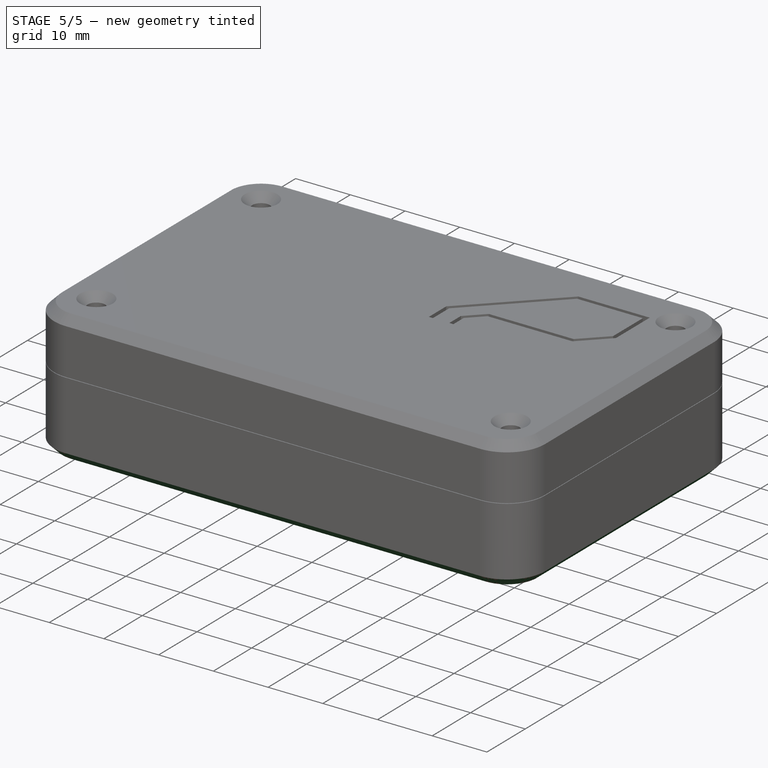
[diagram: stage 5 of 5 — iso view after this stage's code; geometry added in this stage tinted green]
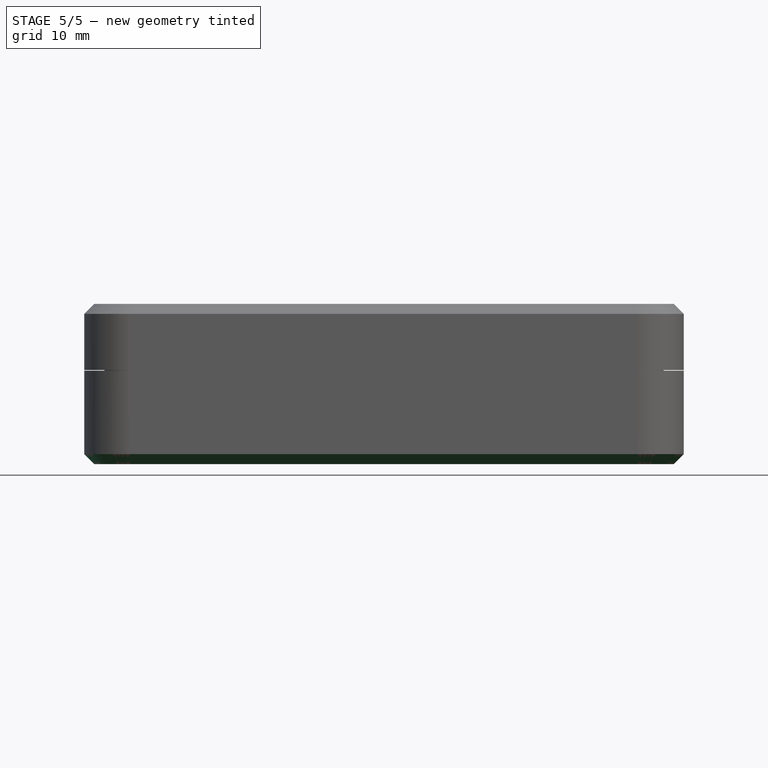
[diagram: stage 5 of 5 — front view after this stage's code; geometry added in this stage tinted green]
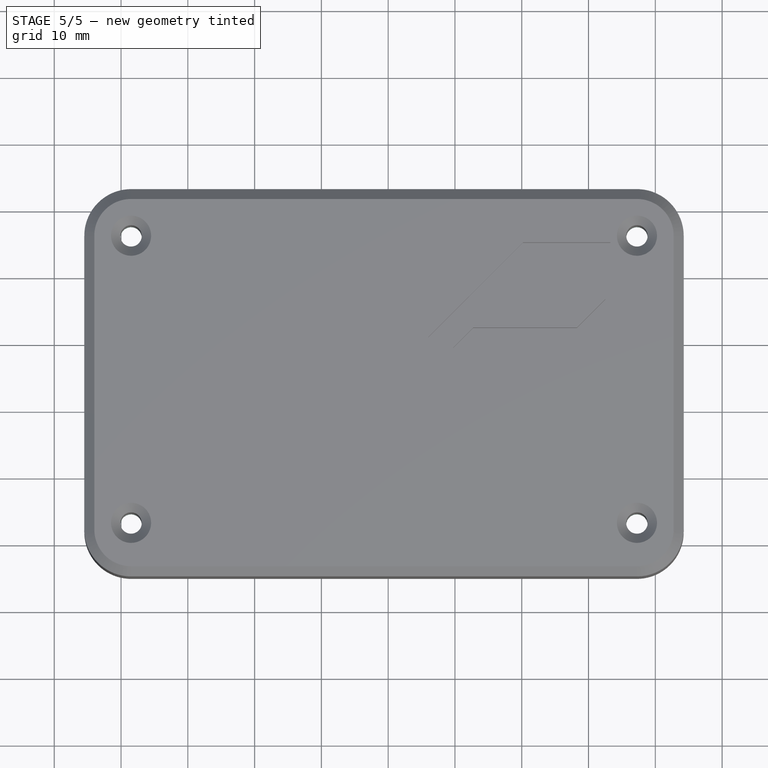
[diagram: stage 5 of 5 — top view after this stage's code; geometry added in this stage tinted green]
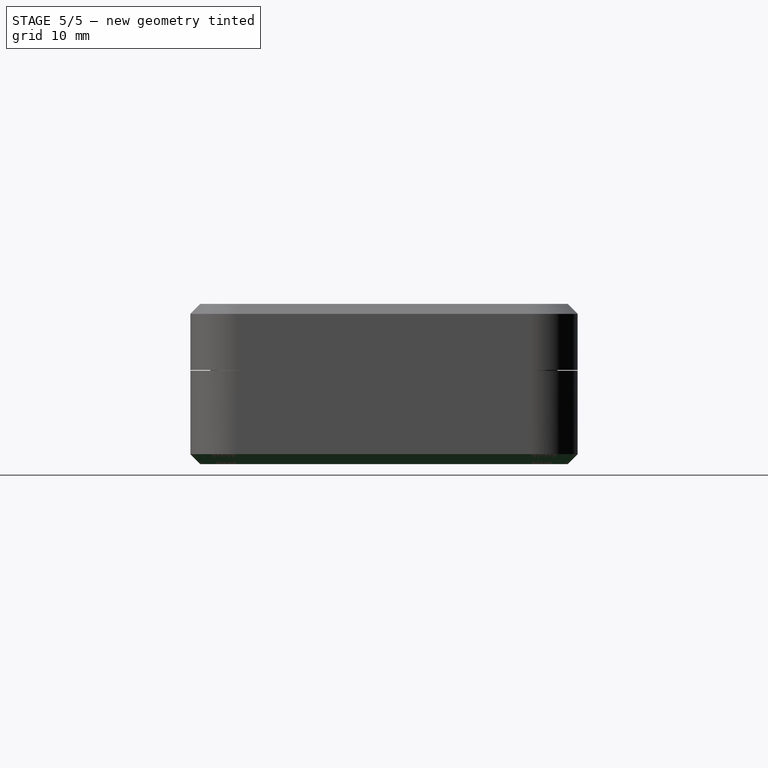
[diagram: stage 5 of 5 — right view after this stage's code; geometry added in this stage tinted green]
FEATURE [Sketcher::SketchObject] Sketch004
  ExternalGeometry = -> [ShapeBinder]
  FullyConstrained = true
  MapMode = 5
  Support = -> [XY_Plane074]
  sketch-geometry (4):
    g0: Circle CenterX=-18.5 CenterY=96 CenterZ=0 NormalX=0 NormalY=0 NormalZ=1 AngleXU=0 Radius=1.6
    g1: Circle CenterX=-18.5 CenterY=53 CenterZ=0 NormalX=0 NormalY=0 NormalZ=1 AngleXU=0 Radius=1.6
    g2: Circle CenterX=57.25 CenterY=53 CenterZ=0 NormalX=0 NormalY=0 NormalZ=1 AngleXU=0 Radius=1.6
    g3: Circle CenterX=57.25 CenterY=96 CenterZ=0 NormalX=0 NormalY=0 NormalZ=1 AngleXU=0 Radius=1.6
  constraints (8):
    c: Coincident(g0,g-3)
    c: Coincident(g1,g-4)
    c: Equal(g0,g1)
    c: Diameter(g0) = 3.2
    c: Coincident(g2,g-6)
    c: Coincident(g3,g-5)
    c: Equal(g3,g2)
    c: Equal(g2,g0)
FEATURE [PartDesign::Pocket] Pocket002
  BaseFeature = -> Pad001
  Direction = (0,0,-1)
  Length = 10
  Length2 = 5
  Profile = -> Sketch004
  ReferenceAxis = -> Sketch004 [N_Axis]
  Type = 0
FEATURE [Sketcher::SketchObject] Sketch005
  AttachmentOffset = pos=(0,0,6) rot=(0,0,1;0rad)
  ExternalGeometry = -> [ShapeBinder]
  FullyConstrained = true
  MapMode = 5
  Placement = pos=(0,0,-6) rot=(0,1,0;3.14159rad)
  Support = -> [XY_Plane074]
  sketch-geometry (28):
    g0: LineSegment StartX=21.25 StartY=94.4123 StartZ=0 EndX=21.25 EndY=97.5877 EndZ=0
    g1: LineSegment StartX=21.25 StartY=97.5877 StartZ=0 EndX=18.5 EndY=99.1754 EndZ=0
    g2: LineSegment StartX=18.5 StartY=99.1754 StartZ=0 EndX=15.75 EndY=97.5877 EndZ=0
    g3: LineSegment StartX=15.75 StartY=97.5877 StartZ=0 EndX=15.75 EndY=94.4123 EndZ=0
    g4: LineSegment StartX=15.75 StartY=94.4123 StartZ=0 EndX=18.5 EndY=92.8246 EndZ=0
    g5: LineSegment StartX=18.5 StartY=92.8246 StartZ=0 EndX=21.25 EndY=94.4123 EndZ=0
    g6: Circle CenterX=18.5 CenterY=96 CenterZ=0 NormalX=0 NormalY=0 NormalZ=1 AngleXU=0 Radius=3.17543
    g7: LineSegment StartX=21.25 StartY=51.4123 StartZ=0 EndX=21.25 EndY=54.5877 EndZ=0
    g8: LineSegment StartX=21.25 StartY=54.5877 StartZ=0 EndX=18.5 EndY=56.1754 EndZ=0
    g9: LineSegment StartX=18.5 StartY=56.1754 StartZ=0 EndX=15.75 EndY=54.5877 EndZ=0
    g10: LineSegment StartX=15.75 StartY=54.5877 StartZ=0 EndX=15.75 EndY=51.4123 EndZ=0
    g11: LineSegment StartX=15.75 StartY=51.4123 StartZ=0 EndX=18.5 EndY=49.8246 EndZ=0
    g12: LineSegment StartX=18.5 StartY=49.8246 StartZ=0 EndX=21.25 EndY=51.4123 EndZ=0
    g13: Circle CenterX=18.5 CenterY=53 CenterZ=0 NormalX=0 NormalY=0 NormalZ=1 AngleXU=0 Radius=3.17543
    g14: LineSegment StartX=-54.5 StartY=54.5877 StartZ=0 EndX=-57.25 EndY=56.1754 EndZ=0
    g15: LineSegment StartX=-57.25 StartY=56.1754 StartZ=0 EndX=-60 EndY=54.5877 EndZ=0
    g16: LineSegment StartX=-60 StartY=54.5877 StartZ=0 EndX=-60 EndY=51.4123 EndZ=0
    g17: LineSegment StartX=-60 StartY=51.4123 StartZ=0 EndX=-57.25 EndY=49.8246 EndZ=0
    g18: LineSegment StartX=-57.25 StartY=49.8246 StartZ=0 EndX=-54.5 EndY=51.4123 EndZ=0
    g19: LineSegment StartX=-54.5 StartY=51.4123 StartZ=0 EndX=-54.5 EndY=54.5877 EndZ=0
    g20: Circle CenterX=-57.25 CenterY=53 CenterZ=0 NormalX=0 NormalY=0 NormalZ=1 AngleXU=0 Radius=3.17543
    g21: LineSegment StartX=-54.5 StartY=94.4123 StartZ=0 EndX=-54.5 EndY=97.5877 EndZ=0
    g22: LineSegment StartX=-54.5 StartY=97.5877 StartZ=0 EndX=-57.25 EndY=99.1754 EndZ=0
    g23: LineSegment StartX=-57.25 StartY=99.1754 StartZ=0 EndX=-60 EndY=97.5877 EndZ=0
    g24: LineSegment StartX=-60 StartY=97.5877 StartZ=0 EndX=-60 EndY=94.4123 EndZ=0
    g25: LineSegment StartX=-60 StartY=94.4123 StartZ=0 EndX=-57.25 EndY=92.8246 EndZ=0
    g26: LineSegment StartX=-57.25 StartY=92.8246 StartZ=0 EndX=-54.5 EndY=94.4123 EndZ=0
    g27: Circle CenterX=-57.25 CenterY=96 CenterZ=0 NormalX=0 NormalY=0 NormalZ=1 AngleXU=0 Radius=3.17543
  constraints (64):
    c: Coincident(g0,g1)
    c: Coincident(g1,g2)
    c: Coincident(g2,g3)
    c: Coincident(g3,g4)
    c: Coincident(g4,g5)
    c: Coincident(g5,g0)
    c: Equal(g0, g1-g5) x5
    c: PointOnObject(g0,g6)
    c: PointOnObject(g1,g6)
    c: PointOnObject(g2,g6)
    c: PointOnObject(g3,g6)
    c: PointOnObject(g4,g6)
    c: PointOnObject(g5,g6)
    c: Coincident(g6,g-3)
    c: Vertical(g3)
    c: DistanceX(g2,g0) = 5.5
    c: Coincident(g7,g8)
    c: Coincident(g8,g9)
    c: Coincident(g9,g10)
    c: Coincident(g10,g11)
    c: Coincident(g11,g12)
    c: Coincident(g12,g7)
    c: Equal(g7, g8-g12) x5
    c: PointOnObject(g7,g13)
    c: PointOnObject(g8,g13)
    c: PointOnObject(g9,g13)
    c: PointOnObject(g10,g13)
    c: PointOnObject(g11,g13)
    c: PointOnObject(g12,g13)
    c: Coincident(g13,g-4)
    c: Vertical(g10)
    c: Vertical(g9,g3)
    c: Coincident(g14,g15)
    c: Coincident(g15,g16)
    c: Coincident(g16,g17)
    c: Coincident(g17,g18)
    c: Coincident(g18,g19)
    c: Coincident(g19,g14)
    c: Equal(g14, g15-g19) x5
    c: PointOnObject(g14,g20)
    c: PointOnObject(g15,g20)
    c: PointOnObject(g16,g20)
    c: PointOnObject(g17,g20)
    c: PointOnObject(g18,g20)
    c: PointOnObject(g19,g20)
    c: Coincident(g20,g-6)
    c: Coincident(g21,g22)
    c: Coincident(g22,g23)
    c: Coincident(g23,g24)
    c: Coincident(g24,g25)
    c: Coincident(g25,g26)
    c: Coincident(g26,g21)
    c: Equal(g21, g22-g26) x5
    c: PointOnObject(g21,g27)
    c: PointOnObject(g22,g27)
    c: PointOnObject(g23,g27)
    c: PointOnObject(g24,g27)
    c: PointOnObject(g25,g27)
    c: PointOnObject(g26,g27)
    c: Coincident(g27,g-5)
    c: Vertical(g24)
    c: Vertical(g16)
    c: Horizontal(g14,g9)
    c: Horizontal(g21,g2)
FEATURE [PartDesign::Pocket] Pocket003
  BaseFeature = -> Pocket002
  Direction = (0,0,1)
  Length = 4.5
  Length2 = 5
  Profile = -> Sketch005
  ReferenceAxis = -> Sketch005 [N_Axis]
  Type = 0
FEATURE [PartDesign::Chamfer] Chamfer001
  Angle = 45
  Base = -> Pocket003 [Edge29]
  BaseFeature = -> Pocket003
  ChamferType = 0
  FlipDirection = false
  Size = 1.5
  Size2 = 1
  SupportTransform = false
  UseAllEdges = false
FEATURE [PartDesign::Chamfer] Chamfer003
  Angle = 45
  Base = -> Chamfer001 [Edge25,Edge23,Edge24,Edge10]
  BaseFeature = -> Chamfer001
  ChamferType = 0
  FlipDirection = false
  Size = 0.25
  Size2 = 1
  SupportTransform = false
  UseAllEdges = false
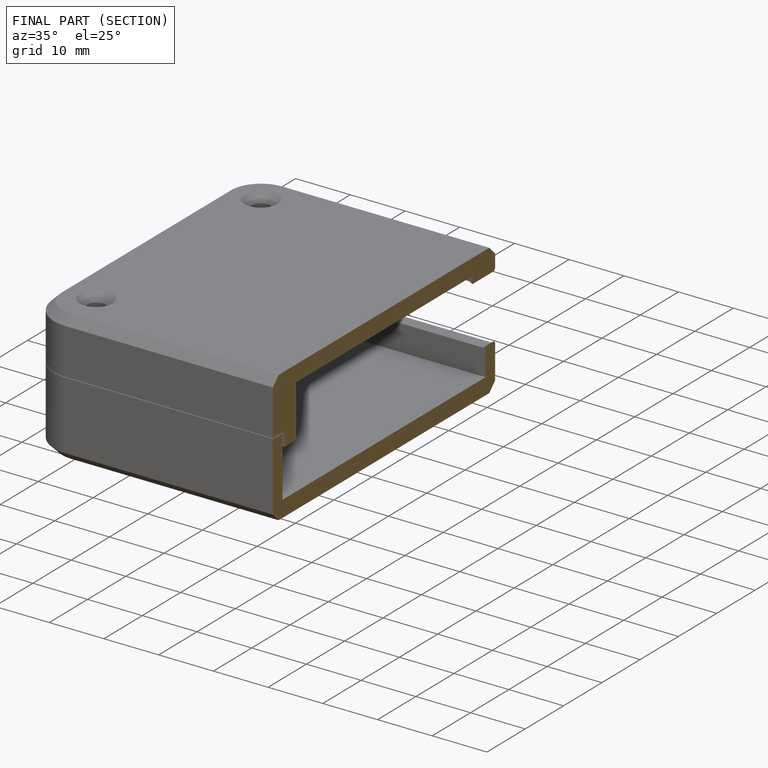
[diagram: finished part — half-section view (interior)]
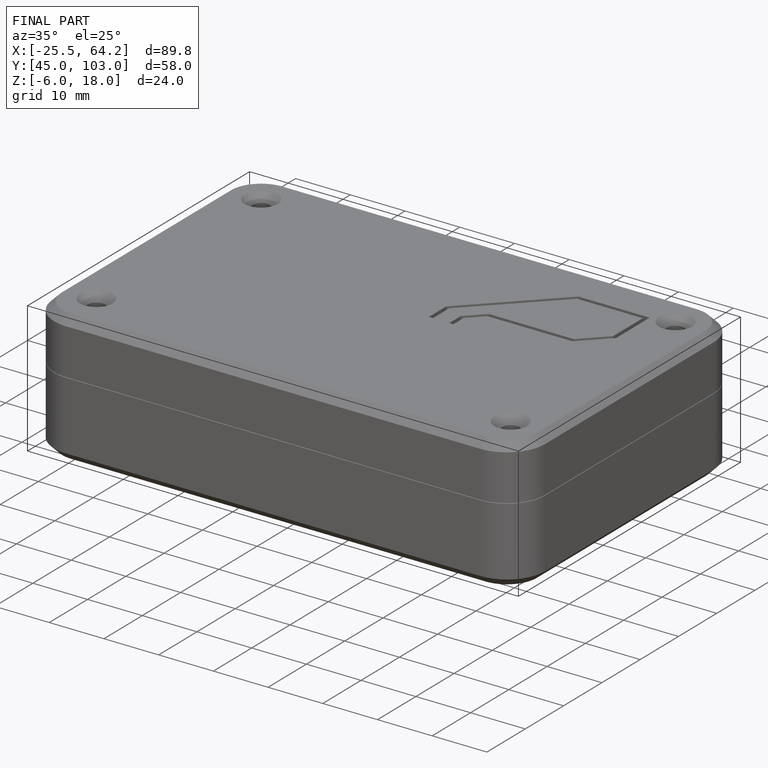
[diagram: finished part — iso view with bounding-box wireframe]
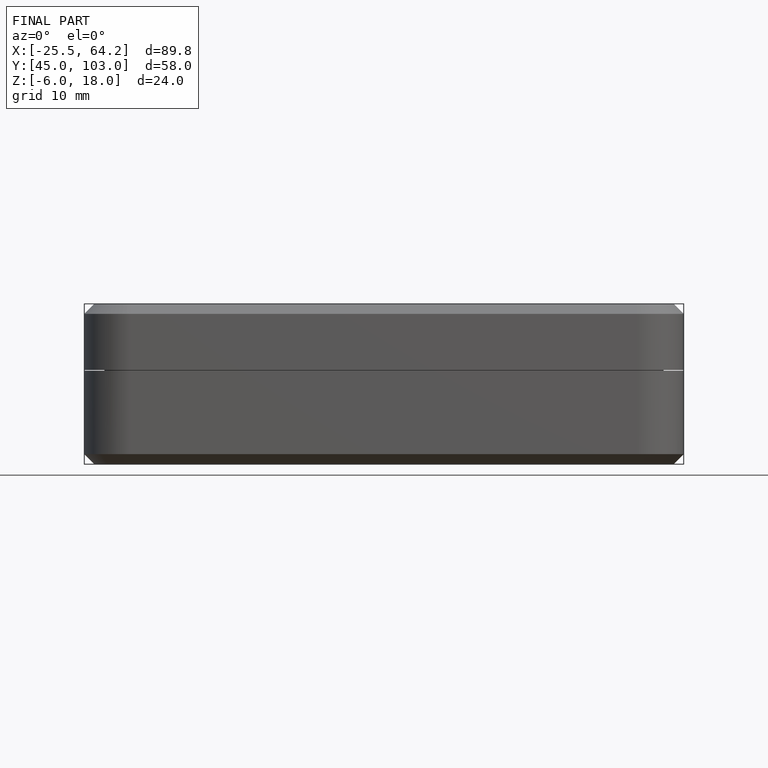
[diagram: finished part — front view with bounding-box wireframe]
